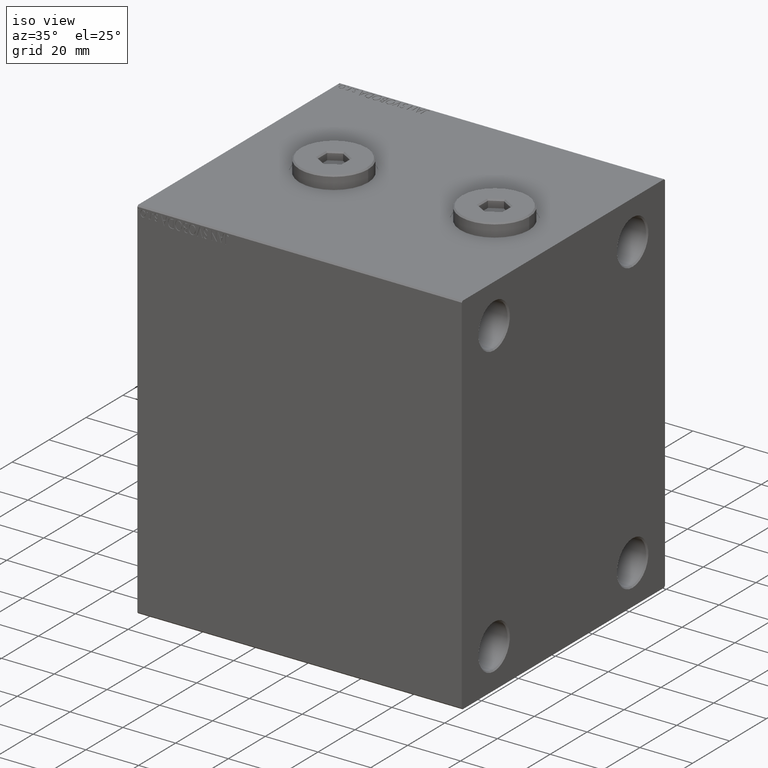
[diagram: clean part render]
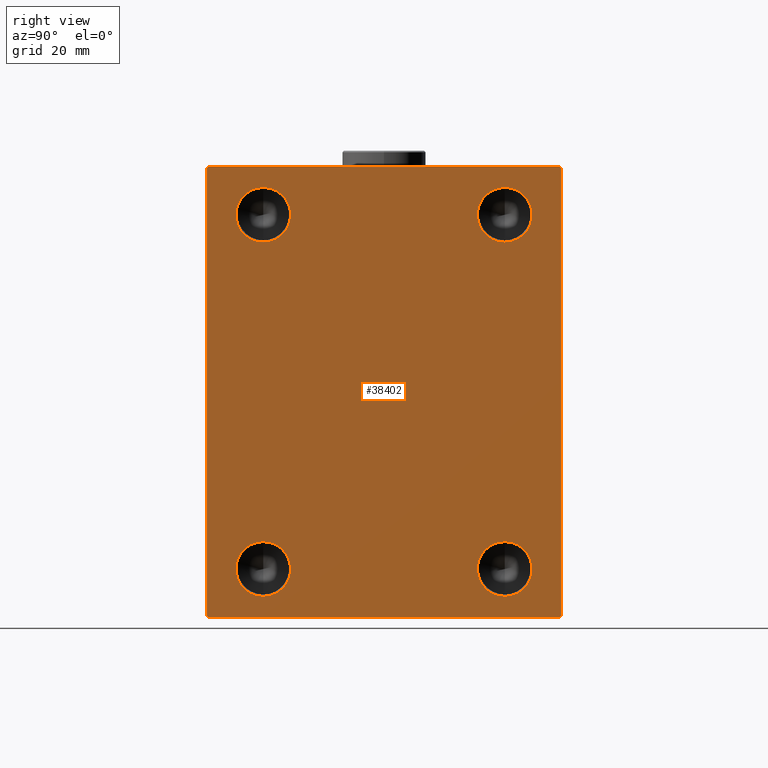
[diagram: tour spotlight — one face highlighted and labeled with its STEP entity id]
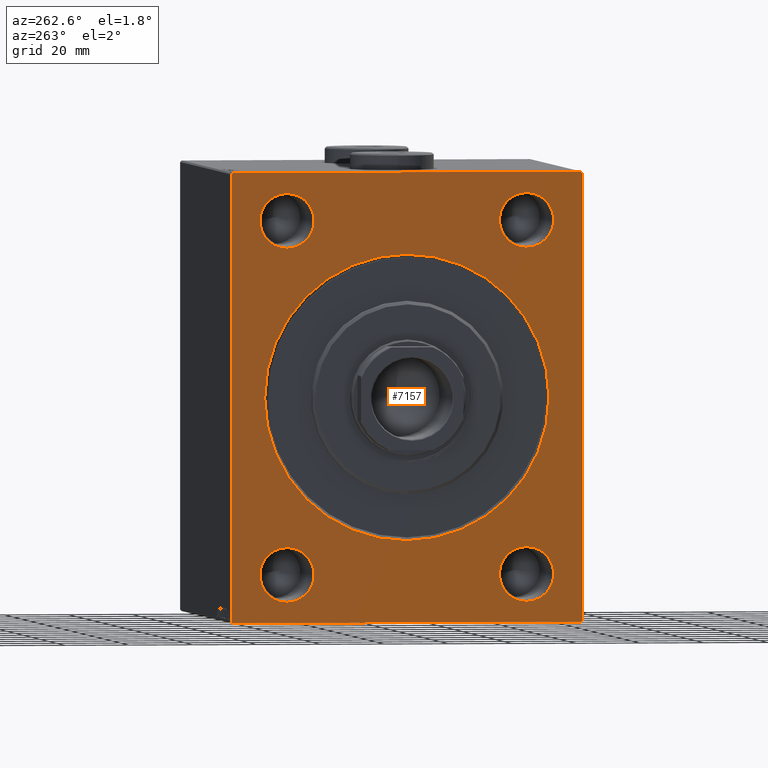
[diagram: tour spotlight — one face highlighted and labeled with its STEP entity id]
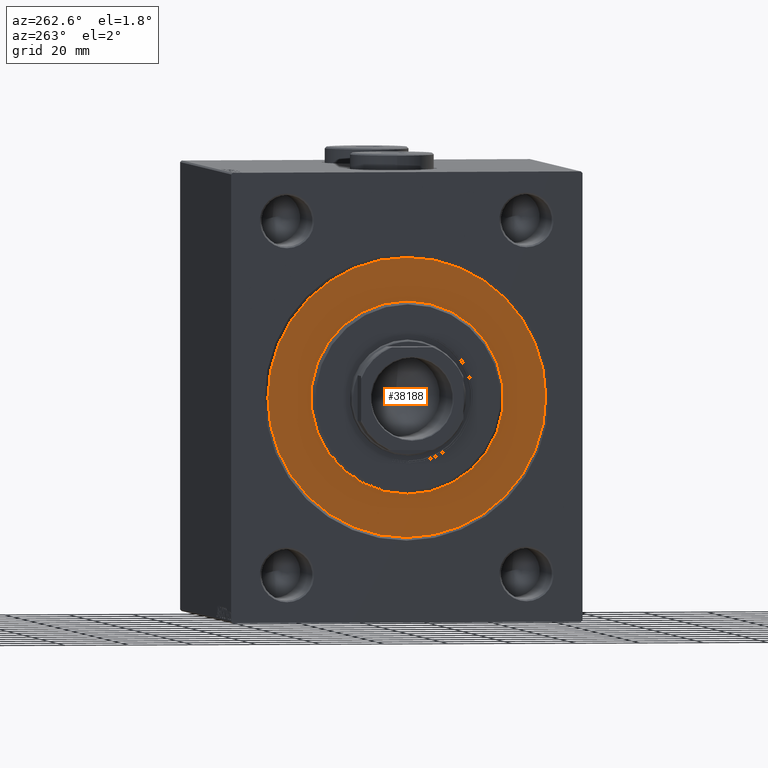
[diagram: tour spotlight — one face highlighted and labeled with its STEP entity id]
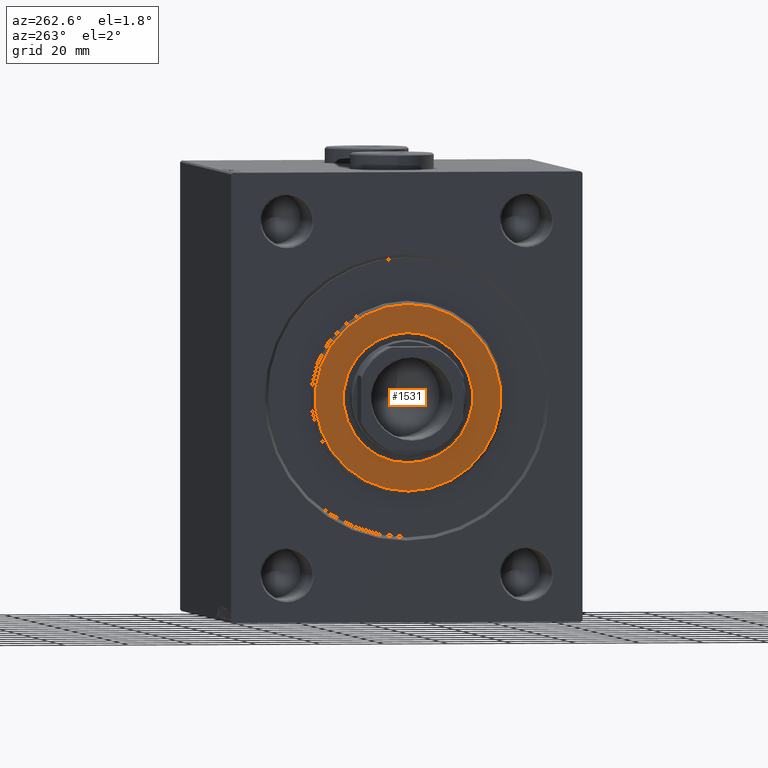
[diagram: tour spotlight — one face highlighted and labeled with its STEP entity id]
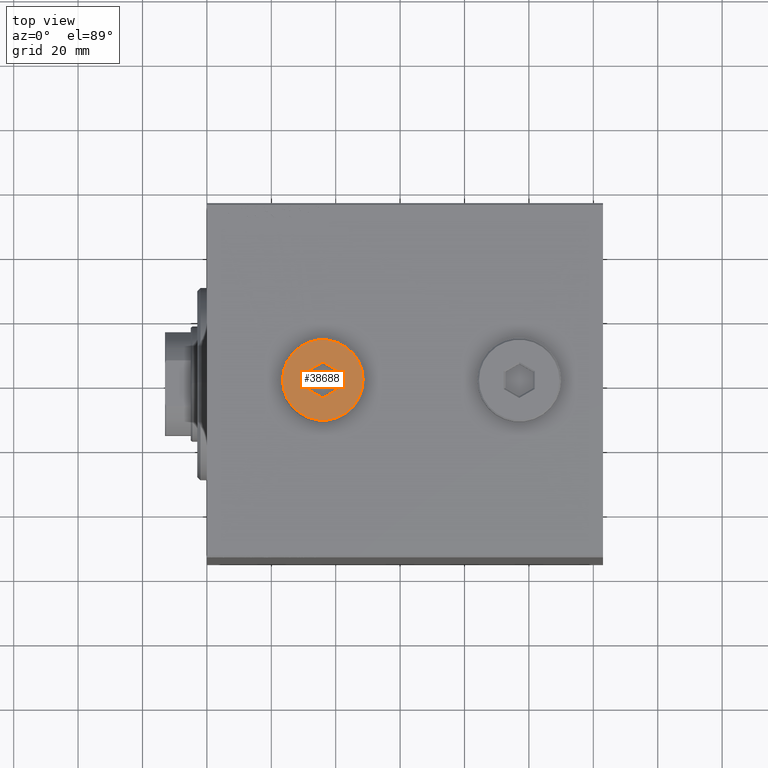
[diagram: tour spotlight — one face highlighted and labeled with its STEP entity id]
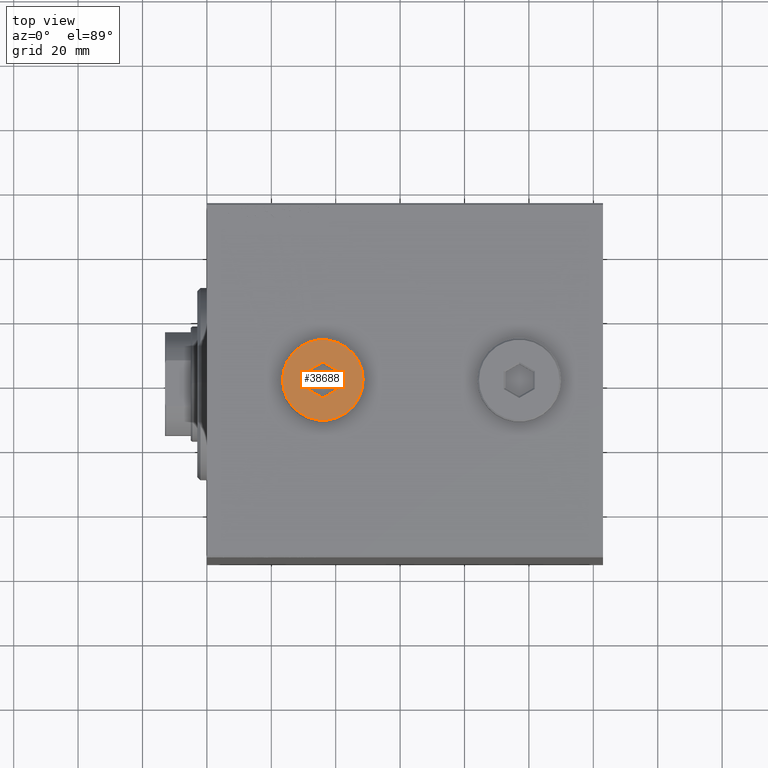
[diagram: tour spotlight — one face highlighted and labeled with its STEP entity id]
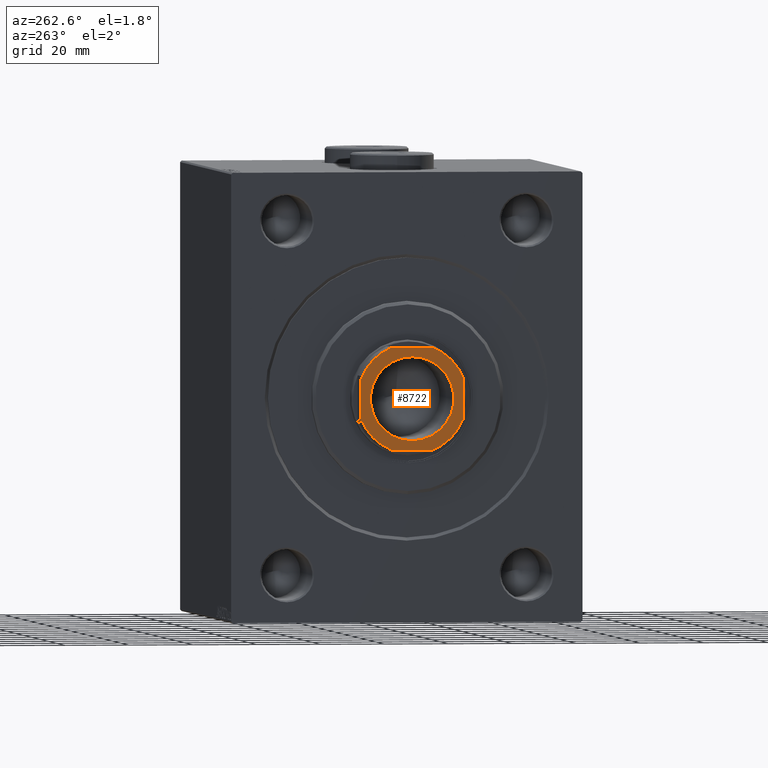
[diagram: tour spotlight — one face highlighted and labeled with its STEP entity id]
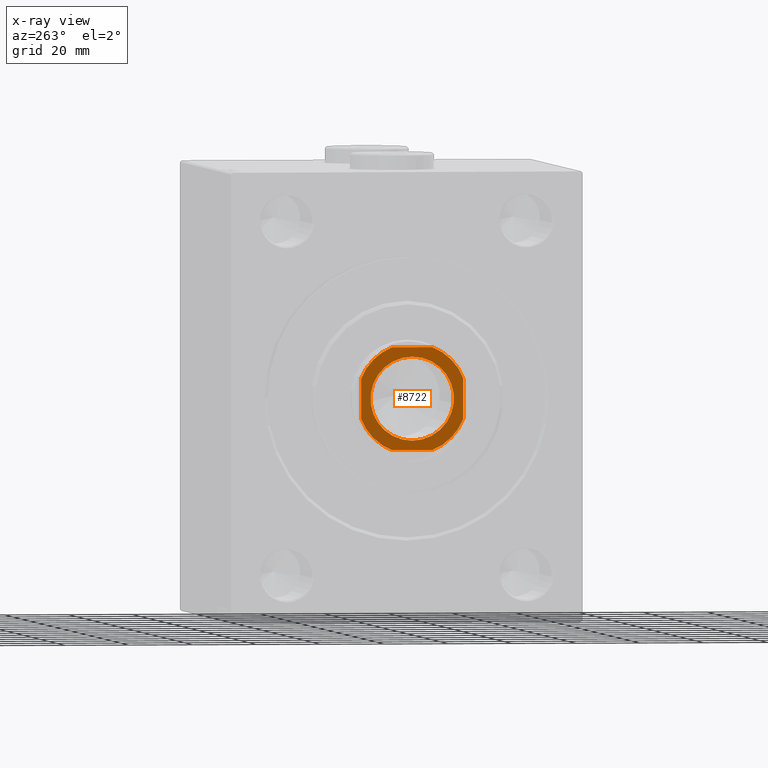
[diagram: x-ray of the same camera — body ghosted, this tour face saturated]
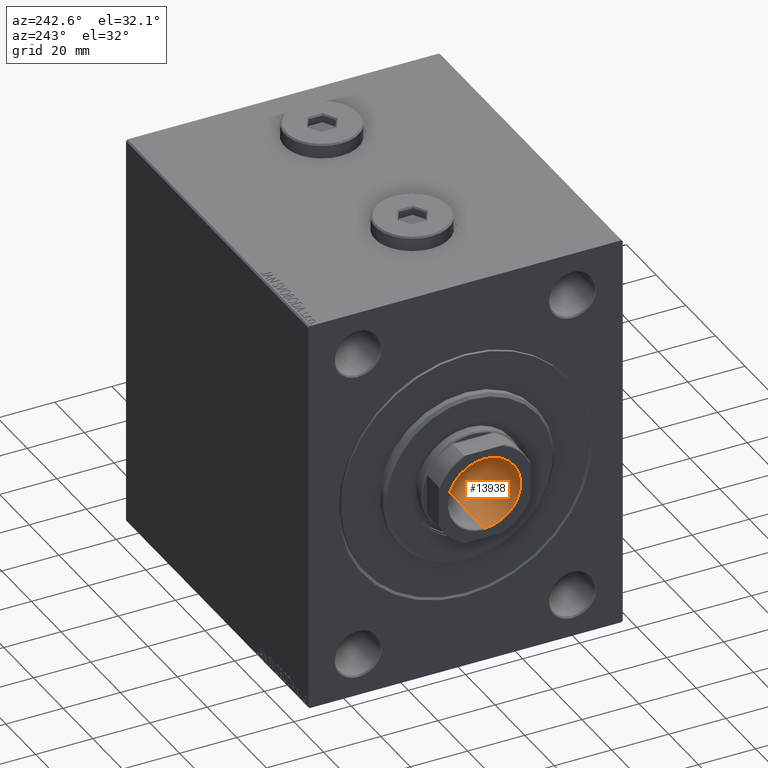
[diagram: tour spotlight — one face highlighted and labeled with its STEP entity id]
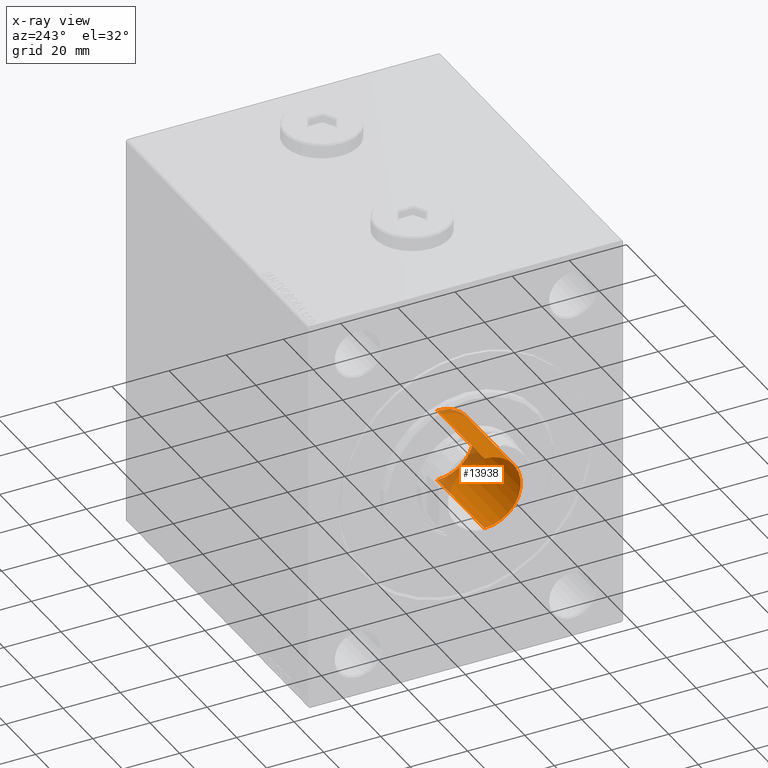
[diagram: x-ray of the same camera — body ghosted, this tour face saturated]
A machine part: a face-by-face anatomy tour. The part has 936 B-rep faces; the first image is the clean iso view, then the 8 largest visible faces are spotlighted one at a time (largest first), each with its STEP entity span.

Face 1 — right view, entity #38402. In plain terms, the highlighted planar face has unit normal (1, 0, 0).
Definition (entity closure, byte-faithful):
#406 = AXIS2_PLACEMENT_3D ( 'NONE', #40878, #44547, #23408 ) ;
#426 = ORIENTED_EDGE ( 'NONE', *, *, #31390, .F. ) ;
#864 = ORIENTED_EDGE ( 'NONE', *, *, #31849, .F. ) ;
#1293 = LINE ( 'NONE', #11435, #26756 ) ;
#1896 = ORIENTED_EDGE ( 'NONE', *, *, #43259, .F. ) ;
#1992 = CARTESIAN_POINT ( 'NONE',  ( 123.0000000000000000, -37.49999999999999289, 46.50000000000000000 ) ) ;
#2530 = CARTESIAN_POINT ( 'NONE',  ( 123.0000000000000000, 62.24999999999847233, 62.25000000000193268 ) ) ;
#3231 = AXIS2_PLACEMENT_3D ( 'NONE', #37370, #26083, #33701 ) ;
#3239 = CARTESIAN_POINT ( 'NONE',  ( 123.0000000000000000, -54.49999999999997158, -70.00000000000000000 ) ) ;
#4948 = CARTESIAN_POINT ( 'NONE',  ( 123.0000000000000000, -37.49999999999999289, -63.50000000000000000 ) ) ;
#5696 = CARTESIAN_POINT ( 'NONE',  ( 123.0000000000000000, -37.49999999999999289, -54.99999999999999289 ) ) ;
#6203 = AXIS2_PLACEMENT_3D ( 'NONE', #15989, #30234, #33232 ) ;
#6217 = VERTEX_POINT ( 'NONE', #43422 ) ;
#6436 = ORIENTED_EDGE ( 'NONE', *, *, #26140, .T. ) ;
#6461 = CIRCLE ( 'NONE', #38039, 8.500000000000007105 ) ;
#6880 = ORIENTED_EDGE ( 'NONE', *, *, #18773, .T. ) ;
#6921 = CIRCLE ( 'NONE', #3231, 8.500000000000007105 ) ;
#7168 = CARTESIAN_POINT ( 'NONE',  ( 123.0000000000000000, -37.49999999999999289, -54.99999999999999289 ) ) ;
#7246 = DIRECTION ( 'NONE',  ( 0.000000000000000000, 0.000000000000000000, -1.000000000000000000 ) ) ;
#7431 = DIRECTION ( 'NONE',  ( 0.000000000000000000, 0.000000000000000000, -1.000000000000000000 ) ) ;
#7452 = VERTEX_POINT ( 'NONE', #22598 ) ;
#8933 = DIRECTION ( 'NONE',  ( 1.000000000000000000, -0.000000000000000000, -0.000000000000000000 ) ) ;
#9142 = CIRCLE ( 'NONE', #6203, 8.500000000000007105 ) ;
#9549 = VECTOR ( 'NONE', #33984, 1000.000000000000000 ) ;
#9611 = DIRECTION ( 'NONE',  ( 0.000000000000000000, 0.000000000000000000, -1.000000000000000000 ) ) ;
#11435 = CARTESIAN_POINT ( 'NONE',  ( 123.0000000000000000, -55.00000000000000000, -70.00000000000000000 ) ) ;
#11488 = CIRCLE ( 'NONE', #15156, 8.500000000000007105 ) ;
#11671 = DIRECTION ( 'NONE',  ( 0.000000000000000000, 1.000000000000000000, 1.261617073437677752E-16 ) ) ;
#12147 = DIRECTION ( 'NONE',  ( 0.000000000000000000, 0.000000000000000000, -1.000000000000000000 ) ) ;
#12385 = DIRECTION ( 'NONE',  ( 1.000000000000000000, -0.000000000000000000, -0.000000000000000000 ) ) ;
#12696 = DIRECTION ( 'NONE',  ( 1.000000000000000000, -0.000000000000000000, -0.000000000000000000 ) ) ;
#12831 = FACE_BOUND ( 'NONE', #20756, .T. ) ;
#14108 = CARTESIAN_POINT ( 'NONE',  ( 123.0000000000000000, 54.99999999999999289, 70.00000000000001421 ) ) ;
#14496 = VECTOR ( 'NONE', #25939, 1000.000000000000000 ) ;
#15156 = AXIS2_PLACEMENT_3D ( 'NONE', #42142, #20769, #7431 ) ;
#15447 = VERTEX_POINT ( 'NONE', #33969 ) ;
#15911 = DIRECTION ( 'NONE',  ( 1.000000000000000000, -0.000000000000000000, -0.000000000000000000 ) ) ;
#15989 = CARTESIAN_POINT ( 'NONE',  ( 123.0000000000000000, 37.50000000000000000, 55.00000000000000711 ) ) ;
#16275 = FACE_BOUND ( 'NONE', #17833, .T. ) ;
#16570 = DIRECTION ( 'NONE',  ( -0.000000000000000000, -0.7071067811865672237, 0.7071067811865279218 ) ) ;
#16617 = VECTOR ( 'NONE', #17779, 1000.000000000000000 ) ;
#17125 = VERTEX_POINT ( 'NONE', #1992 ) ;
#17599 = AXIS2_PLACEMENT_3D ( 'NONE', #22809, #15911, #29931 ) ;
#17779 = DIRECTION ( 'NONE',  ( 0.000000000000000000, -1.000000000000000000, -1.261617073437677999E-16 ) ) ;
#17833 = EDGE_LOOP ( 'NONE', ( #19835, #426 ) ) ;
#18072 = VECTOR ( 'NONE', #25345, 1000.000000000000000 ) ;
#18121 = ORIENTED_EDGE ( 'NONE', *, *, #44064, .T. ) ;
#18207 = EDGE_CURVE ( 'NONE', #43932, #19683, #9142, .T. ) ;
#18219 = EDGE_CURVE ( 'NONE', #7452, #43514, #6921, .T. ) ;
#18773 = EDGE_CURVE ( 'NONE', #34435, #24538, #22294, .T. ) ;
#19683 = VERTEX_POINT ( 'NONE', #25350 ) ;
#19835 = ORIENTED_EDGE ( 'NONE', *, *, #31949, .F. ) ;
#19915 = EDGE_LOOP ( 'NONE', ( #864, #26325 ) ) ;
#20134 = CARTESIAN_POINT ( 'NONE',  ( 123.0000000000000000, 54.50000000000001421, -69.99999999999998579 ) ) ;
#20444 = ORIENTED_EDGE ( 'NONE', *, *, #38202, .F. ) ;
#20756 = EDGE_LOOP ( 'NONE', ( #20783, #1896 ) ) ;
#20769 = DIRECTION ( 'NONE',  ( 1.000000000000000000, -0.000000000000000000, -0.000000000000000000 ) ) ;
#20783 = ORIENTED_EDGE ( 'NONE', *, *, #18219, .F. ) ;
#20965 = VERTEX_POINT ( 'NONE', #3239 ) ;
#22294 = LINE ( 'NONE', #25739, #23869 ) ;
#22482 = AXIS2_PLACEMENT_3D ( 'NONE', #5696, #8933, #9611 ) ;
#22598 = CARTESIAN_POINT ( 'NONE',  ( 123.0000000000000000, 37.50000000000000000, -46.49999999999998579 ) ) ;
#22809 = CARTESIAN_POINT ( 'NONE',  ( 123.0000000000000000, -37.49999999999999289, 55.00000000000000711 ) ) ;
#22961 = LINE ( 'NONE', #43646, #14496 ) ;
#23036 = CARTESIAN_POINT ( 'NONE',  ( 123.0000000000000000, 37.50000000000000000, 55.00000000000000711 ) ) ;
#23110 = CARTESIAN_POINT ( 'NONE',  ( 123.0000000000000000, 37.50000000000000000, 46.50000000000000000 ) ) ;
#23408 = DIRECTION ( 'NONE',  ( 0.000000000000000000, 0.000000000000000000, -1.000000000000000000 ) ) ;
#23565 = CARTESIAN_POINT ( 'NONE',  ( 123.0000000000000000, -37.49999999999999289, 63.50000000000001421 ) ) ;
#23852 = PLANE ( 'NONE',  #406 ) ;
#23869 = VECTOR ( 'NONE', #28955, 999.9999999999998863 ) ;
#23971 = CARTESIAN_POINT ( 'NONE',  ( 123.0000000000000000, -55.00000000000000000, 70.00000000000000000 ) ) ;
#24538 = VERTEX_POINT ( 'NONE', #42832 ) ;
#24695 = EDGE_CURVE ( 'NONE', #24538, #15447, #37762, .T. ) ;
#25288 = CARTESIAN_POINT ( 'NONE',  ( 123.0000000000000000, -54.49999999999999289, 70.00000000000000000 ) ) ;
#25345 = DIRECTION ( 'NONE',  ( -0.000000000000000000, 0.7071067811865672237, -0.7071067811865279218 ) ) ;
#25350 = CARTESIAN_POINT ( 'NONE',  ( 123.0000000000000000, 37.50000000000000000, 63.50000000000001421 ) ) ;
#25739 = CARTESIAN_POINT ( 'NONE',  ( 123.0000000000000000, -62.24999999999961631, 62.25000000000048317 ) ) ;
#25939 = DIRECTION ( 'NONE',  ( -0.000000000000000000, 0.7071067811865230368, 0.7071067811865721087 ) ) ;
#26083 = DIRECTION ( 'NONE',  ( 1.000000000000000000, -0.000000000000000000, -0.000000000000000000 ) ) ;
#26114 = CIRCLE ( 'NONE', #32756, 8.500000000000007105 ) ;
#26140 = EDGE_CURVE ( 'NONE', #31256, #33720, #22961, .T. ) ;
#26325 = ORIENTED_EDGE ( 'NONE', *, *, #18207, .F. ) ;
#26756 = VECTOR ( 'NONE', #11671, 1000.000000000000000 ) ;
#26842 = FACE_OUTER_BOUND ( 'NONE', #32378, .T. ) ;
#27873 = CIRCLE ( 'NONE', #17599, 8.500000000000007105 ) ;
#28227 = CARTESIAN_POINT ( 'NONE',  ( 123.0000000000000000, 55.00000000000000711, -69.49999999999997158 ) ) ;
#28319 = CIRCLE ( 'NONE', #22482, 8.500000000000007105 ) ;
#28589 = CIRCLE ( 'NONE', #39618, 8.500000000000007105 ) ;
#28955 = DIRECTION ( 'NONE',  ( 0.000000000000000000, -0.7071067811865525687, -0.7071067811865425767 ) ) ;
#29931 = DIRECTION ( 'NONE',  ( 0.000000000000000000, 0.000000000000000000, -1.000000000000000000 ) ) ;
#30234 = DIRECTION ( 'NONE',  ( 1.000000000000000000, -0.000000000000000000, -0.000000000000000000 ) ) ;
#30295 = FACE_BOUND ( 'NONE', #34444, .T. ) ;
#30719 = CARTESIAN_POINT ( 'NONE',  ( 123.0000000000000000, -37.49999999999999289, 55.00000000000000711 ) ) ;
#30941 = DIRECTION ( 'NONE',  ( 1.000000000000000000, -0.000000000000000000, -0.000000000000000000 ) ) ;
#31256 = VERTEX_POINT ( 'NONE', #20134 ) ;
#31390 = EDGE_CURVE ( 'NONE', #17125, #44035, #6461, .T. ) ;
#31697 = CARTESIAN_POINT ( 'NONE',  ( 123.0000000000000000, 37.50000000000000000, -63.50000000000000000 ) ) ;
#31849 = EDGE_CURVE ( 'NONE', #19683, #43932, #28589, .T. ) ;
#31949 = EDGE_CURVE ( 'NONE', #44035, #17125, #27873, .T. ) ;
#32073 = EDGE_CURVE ( 'NONE', #33720, #6217, #36977, .T. ) ;
#32378 = EDGE_LOOP ( 'NONE', ( #18121, #6880, #36291, #44661, #35171, #6436, #34783, #37327 ) ) ;
#32616 = VERTEX_POINT ( 'NONE', #42238 ) ;
#32756 = AXIS2_PLACEMENT_3D ( 'NONE', #7168, #12385, #12147 ) ;
#33232 = DIRECTION ( 'NONE',  ( 0.000000000000000000, 0.000000000000000000, -1.000000000000000000 ) ) ;
#33340 = LINE ( 'NONE', #42812, #18072 ) ;
#33701 = DIRECTION ( 'NONE',  ( 0.000000000000000000, 0.000000000000000000, -1.000000000000000000 ) ) ;
#33720 = VERTEX_POINT ( 'NONE', #28227 ) ;
#33800 = EDGE_CURVE ( 'NONE', #20965, #31256, #1293, .T. ) ;
#33969 = CARTESIAN_POINT ( 'NONE',  ( 123.0000000000000000, -55.00000000000000000, -69.50000000000000000 ) ) ;
#33984 = DIRECTION ( 'NONE',  ( 0.000000000000000000, -9.912705577010325549E-17, 1.000000000000000000 ) ) ;
#34307 = VECTOR ( 'NONE', #45115, 1000.000000000000000 ) ;
#34435 = VERTEX_POINT ( 'NONE', #25288 ) ;
#34444 = EDGE_LOOP ( 'NONE', ( #20444, #41936 ) ) ;
#34762 = VERTEX_POINT ( 'NONE', #40821 ) ;
#34783 = ORIENTED_EDGE ( 'NONE', *, *, #32073, .T. ) ;
#34970 = VECTOR ( 'NONE', #16570, 1000.000000000000000 ) ;
#35048 = LINE ( 'NONE', #14108, #16617 ) ;
#35171 = ORIENTED_EDGE ( 'NONE', *, *, #33800, .T. ) ;
#36291 = ORIENTED_EDGE ( 'NONE', *, *, #24695, .T. ) ;
#36977 = LINE ( 'NONE', #40197, #9549 ) ;
#37291 = DIRECTION ( 'NONE',  ( 0.000000000000000000, 0.000000000000000000, -1.000000000000000000 ) ) ;
#37327 = ORIENTED_EDGE ( 'NONE', *, *, #39162, .T. ) ;
#37370 = CARTESIAN_POINT ( 'NONE',  ( 123.0000000000000000, 37.50000000000000000, -54.99999999999999289 ) ) ;
#37762 = LINE ( 'NONE', #23971, #34307 ) ;
#38039 = AXIS2_PLACEMENT_3D ( 'NONE', #30719, #30941, #7246 ) ;
#38202 = EDGE_CURVE ( 'NONE', #32616, #38547, #26114, .T. ) ;
#38328 = EDGE_CURVE ( 'NONE', #38547, #32616, #28319, .T. ) ;
#38402 = ADVANCED_FACE ( 'NONE', ( #41319, #16275, #30295, #12831, #26842 ), #23852, .T. ) ;
#38547 = VERTEX_POINT ( 'NONE', #4948 ) ;
#39162 = EDGE_CURVE ( 'NONE', #6217, #34762, #45526, .T. ) ;
#39618 = AXIS2_PLACEMENT_3D ( 'NONE', #23036, #12696, #37291 ) ;
#40197 = CARTESIAN_POINT ( 'NONE',  ( 123.0000000000000000, 55.00000000000000711, -69.99999999999998579 ) ) ;
#40821 = CARTESIAN_POINT ( 'NONE',  ( 123.0000000000000000, 54.49999999999996447, 70.00000000000001421 ) ) ;
#40878 = CARTESIAN_POINT ( 'NONE',  ( 123.0000000000000000, 0.000000000000000000, 0.000000000000000000 ) ) ;
#41319 = FACE_BOUND ( 'NONE', #19915, .T. ) ;
#41936 = ORIENTED_EDGE ( 'NONE', *, *, #38328, .F. ) ;
#42142 = CARTESIAN_POINT ( 'NONE',  ( 123.0000000000000000, 37.50000000000000000, -54.99999999999999289 ) ) ;
#42238 = CARTESIAN_POINT ( 'NONE',  ( 123.0000000000000000, -37.49999999999999289, -46.49999999999998579 ) ) ;
#42812 = CARTESIAN_POINT ( 'NONE',  ( 123.0000000000000000, -62.24999999999847233, -62.25000000000193268 ) ) ;
#42832 = CARTESIAN_POINT ( 'NONE',  ( 123.0000000000000000, -55.00000000000000000, 69.50000000000000000 ) ) ;
#43259 = EDGE_CURVE ( 'NONE', #43514, #7452, #11488, .T. ) ;
#43372 = EDGE_CURVE ( 'NONE', #15447, #20965, #33340, .T. ) ;
#43422 = CARTESIAN_POINT ( 'NONE',  ( 123.0000000000000000, 54.99999999999999289, 69.50000000000001421 ) ) ;
#43514 = VERTEX_POINT ( 'NONE', #31697 ) ;
#43646 = CARTESIAN_POINT ( 'NONE',  ( 123.0000000000000000, 62.25000000000189715, -62.24999999999756994 ) ) ;
#43932 = VERTEX_POINT ( 'NONE', #23110 ) ;
#44035 = VERTEX_POINT ( 'NONE', #23565 ) ;
#44064 = EDGE_CURVE ( 'NONE', #34762, #34435, #35048, .T. ) ;
#44547 = DIRECTION ( 'NONE',  ( 1.000000000000000000, 0.000000000000000000, 0.000000000000000000 ) ) ;
#44661 = ORIENTED_EDGE ( 'NONE', *, *, #43372, .T. ) ;
#45115 = DIRECTION ( 'NONE',  ( 0.000000000000000000, 0.000000000000000000, -1.000000000000000000 ) ) ;
#45526 = LINE ( 'NONE', #2530, #34970 ) ;

Face 2 — auxiliary view, entity #7157. In plain terms, the highlighted planar face has unit normal (1, 0, 0).
Definition (entity closure, byte-faithful):
#451 = CARTESIAN_POINT ( 'NONE',  ( 0.000000000000000000, -37.49999999999999289, 63.50000000000001421 ) ) ;
#1264 = CARTESIAN_POINT ( 'NONE',  ( 0.000000000000000000, 54.49999999999996447, 70.00000000000001421 ) ) ;
#1327 = VERTEX_POINT ( 'NONE', #19981 ) ;
#1422 = EDGE_CURVE ( 'NONE', #8939, #22369, #36266, .T. ) ;
#1511 = CARTESIAN_POINT ( 'NONE',  ( 0.000000000000000000, 0.000000000000000000, 0.000000000000000000 ) ) ;
#1573 = CARTESIAN_POINT ( 'NONE',  ( 0.000000000000000000, 37.50000000000000000, -46.49999999999998579 ) ) ;
#2012 = EDGE_CURVE ( 'NONE', #41709, #16107, #31587, .T. ) ;
#2103 = FACE_BOUND ( 'NONE', #33023, .T. ) ;
#2753 = ORIENTED_EDGE ( 'NONE', *, *, #9799, .F. ) ;
#2855 = VERTEX_POINT ( 'NONE', #35966 ) ;
#3005 = CARTESIAN_POINT ( 'NONE',  ( 0.000000000000000000, -55.00000000000000000, 70.00000000000000000 ) ) ;
#3572 = CARTESIAN_POINT ( 'NONE',  ( 0.000000000000000000, 0.000000000000000000, 44.49999999999998579 ) ) ;
#3801 = CARTESIAN_POINT ( 'NONE',  ( 0.000000000000000000, 37.50000000000000000, 46.50000000000000000 ) ) ;
#3832 = CARTESIAN_POINT ( 'NONE',  ( 0.000000000000000000, -55.00000000000000000, 69.50000000000000000 ) ) ;
#3864 = CARTESIAN_POINT ( 'NONE',  ( 0.000000000000000000, -55.00000000000000000, -70.00000000000000000 ) ) ;
#4270 = CARTESIAN_POINT ( 'NONE',  ( 0.000000000000000000, 55.00000000000000711, -69.99999999999998579 ) ) ;
#4428 = EDGE_LOOP ( 'NONE', ( #11915, #13850 ) ) ;
#5225 = EDGE_LOOP ( 'NONE', ( #8124, #6651, #11022, #15853, #2753, #36571, #34080, #32842 ) ) ;
#5354 = LINE ( 'NONE', #36635, #18836 ) ;
#5556 = FACE_BOUND ( 'NONE', #16831, .T. ) ;
#5703 = EDGE_CURVE ( 'NONE', #16343, #39171, #12103, .T. ) ;
#5724 = DIRECTION ( 'NONE',  ( 1.000000000000000000, 0.000000000000000000, 0.000000000000000000 ) ) ;
#6109 = DIRECTION ( 'NONE',  ( 0.000000000000000000, 0.000000000000000000, -1.000000000000000000 ) ) ;
#6651 = ORIENTED_EDGE ( 'NONE', *, *, #5703, .T. ) ;
#7157 = ADVANCED_FACE ( 'NONE', ( #5556, #15449, #33622, #12697, #2103, #16143 ), #30164, .F. ) ;
#7165 = CARTESIAN_POINT ( 'NONE',  ( 0.000000000000000000, 5.449678256205719615E-15, -44.49999999999998579 ) ) ;
#7249 = CIRCLE ( 'NONE', #32958, 8.500000000000007105 ) ;
#7381 = ORIENTED_EDGE ( 'NONE', *, *, #13485, .T. ) ;
#7453 = DIRECTION ( 'NONE',  ( 1.000000000000000000, 0.000000000000000000, 0.000000000000000000 ) ) ;
#7574 = DIRECTION ( 'NONE',  ( 1.000000000000000000, 0.000000000000000000, 0.000000000000000000 ) ) ;
#8124 = ORIENTED_EDGE ( 'NONE', *, *, #34312, .F. ) ;
#8156 = CARTESIAN_POINT ( 'NONE',  ( 0.000000000000000000, 37.50000000000000000, 55.00000000000000711 ) ) ;
#8178 = VECTOR ( 'NONE', #19909, 999.9999999999998863 ) ;
#8182 = VERTEX_POINT ( 'NONE', #7165 ) ;
#8492 = DIRECTION ( 'NONE',  ( 1.000000000000000000, 0.000000000000000000, 0.000000000000000000 ) ) ;
#8733 = CARTESIAN_POINT ( 'NONE',  ( 0.000000000000000000, -37.49999999999999289, 55.00000000000000711 ) ) ;
#8939 = VERTEX_POINT ( 'NONE', #1264 ) ;
#9054 = EDGE_LOOP ( 'NONE', ( #27644, #34559 ) ) ;
#9251 = DIRECTION ( 'NONE',  ( 0.000000000000000000, 0.000000000000000000, -1.000000000000000000 ) ) ;
#9275 = CIRCLE ( 'NONE', #23933, 8.500000000000007105 ) ;
#9799 = EDGE_CURVE ( 'NONE', #2855, #22369, #11184, .T. ) ;
#9856 = CIRCLE ( 'NONE', #19410, 44.49999999999998579 ) ;
#10342 = VERTEX_POINT ( 'NONE', #31942 ) ;
#10614 = DIRECTION ( 'NONE',  ( 0.000000000000000000, -0.7071067811865230368, -0.7071067811865721087 ) ) ;
#10701 = VECTOR ( 'NONE', #10614, 1000.000000000000000 ) ;
#10990 = CARTESIAN_POINT ( 'NONE',  ( 0.000000000000000000, 37.50000000000000000, 63.50000000000001421 ) ) ;
#11022 = ORIENTED_EDGE ( 'NONE', *, *, #44525, .F. ) ;
#11184 = LINE ( 'NONE', #4270, #32499 ) ;
#11467 = DIRECTION ( 'NONE',  ( 0.000000000000000000, 0.000000000000000000, -1.000000000000000000 ) ) ;
#11575 = VERTEX_POINT ( 'NONE', #21985 ) ;
#11915 = ORIENTED_EDGE ( 'NONE', *, *, #21847, .T. ) ;
#12103 = LINE ( 'NONE', #43826, #8178 ) ;
#12697 = FACE_BOUND ( 'NONE', #28705, .T. ) ;
#13485 = EDGE_CURVE ( 'NONE', #8182, #15585, #9856, .T. ) ;
#13752 = CIRCLE ( 'NONE', #24030, 8.500000000000007105 ) ;
#13850 = ORIENTED_EDGE ( 'NONE', *, *, #29556, .T. ) ;
#14281 = VERTEX_POINT ( 'NONE', #10990 ) ;
#14490 = LINE ( 'NONE', #3005, #21627 ) ;
#14491 = ORIENTED_EDGE ( 'NONE', *, *, #42220, .T. ) ;
#14924 = EDGE_CURVE ( 'NONE', #14281, #28848, #23840, .T. ) ;
#15125 = CIRCLE ( 'NONE', #38627, 8.500000000000007105 ) ;
#15277 = DIRECTION ( 'NONE',  ( 1.000000000000000000, 0.000000000000000000, 0.000000000000000000 ) ) ;
#15449 = FACE_BOUND ( 'NONE', #9054, .T. ) ;
#15585 = VERTEX_POINT ( 'NONE', #3572 ) ;
#15591 = CARTESIAN_POINT ( 'NONE',  ( 0.000000000000000000, 37.50000000000000000, 55.00000000000000711 ) ) ;
#15637 = ORIENTED_EDGE ( 'NONE', *, *, #39221, .T. ) ;
#15853 = ORIENTED_EDGE ( 'NONE', *, *, #1422, .T. ) ;
#16107 = VERTEX_POINT ( 'NONE', #1573 ) ;
#16143 = FACE_OUTER_BOUND ( 'NONE', #5225, .T. ) ;
#16343 = VERTEX_POINT ( 'NONE', #3832 ) ;
#16619 = CIRCLE ( 'NONE', #42302, 8.500000000000007105 ) ;
#16831 = EDGE_LOOP ( 'NONE', ( #14491, #7381 ) ) ;
#17359 = CARTESIAN_POINT ( 'NONE',  ( 0.000000000000000000, 54.50000000000001421, -69.99999999999998579 ) ) ;
#18561 = CARTESIAN_POINT ( 'NONE',  ( 0.000000000000000000, 54.49999999999996447, 70.00000000000001421 ) ) ;
#18774 = DIRECTION ( 'NONE',  ( 0.000000000000000000, 0.000000000000000000, -1.000000000000000000 ) ) ;
#18836 = VECTOR ( 'NONE', #22370, 1000.000000000000000 ) ;
#19310 = ORIENTED_EDGE ( 'NONE', *, *, #14924, .T. ) ;
#19410 = AXIS2_PLACEMENT_3D ( 'NONE', #1511, #26357, #18774 ) ;
#19697 = AXIS2_PLACEMENT_3D ( 'NONE', #26115, #41066, #6109 ) ;
#19780 = LINE ( 'NONE', #27121, #43815 ) ;
#19909 = DIRECTION ( 'NONE',  ( -0.000000000000000000, 0.7071067811865525687, 0.7071067811865425767 ) ) ;
#19981 = CARTESIAN_POINT ( 'NONE',  ( 0.000000000000000000, -37.49999999999999289, -46.49999999999998579 ) ) ;
#20737 = VERTEX_POINT ( 'NONE', #21235 ) ;
#21023 = CARTESIAN_POINT ( 'NONE',  ( 0.000000000000000000, -37.49999999999999289, -54.99999999999999289 ) ) ;
#21235 = CARTESIAN_POINT ( 'NONE',  ( 0.000000000000000000, -37.49999999999999289, 46.50000000000000000 ) ) ;
#21367 = CARTESIAN_POINT ( 'NONE',  ( 0.000000000000000000, 37.50000000000000000, -54.99999999999999289 ) ) ;
#21627 = VECTOR ( 'NONE', #27620, 1000.000000000000000 ) ;
#21847 = EDGE_CURVE ( 'NONE', #34329, #20737, #9275, .T. ) ;
#21985 = CARTESIAN_POINT ( 'NONE',  ( 0.000000000000000000, -54.49999999999997158, -70.00000000000000000 ) ) ;
#22174 = DIRECTION ( 'NONE',  ( 0.000000000000000000, 0.000000000000000000, -1.000000000000000000 ) ) ;
#22369 = VERTEX_POINT ( 'NONE', #44520 ) ;
#22370 = DIRECTION ( 'NONE',  ( -0.000000000000000000, -0.7071067811865672237, 0.7071067811865279218 ) ) ;
#22512 = DIRECTION ( 'NONE',  ( 0.000000000000000000, 0.000000000000000000, -1.000000000000000000 ) ) ;
#22929 = DIRECTION ( 'NONE',  ( -0.000000000000000000, 0.7071067811865672237, -0.7071067811865279218 ) ) ;
#23840 = CIRCLE ( 'NONE', #39870, 8.500000000000007105 ) ;
#23933 = AXIS2_PLACEMENT_3D ( 'NONE', #8733, #5724, #37454 ) ;
#24030 = AXIS2_PLACEMENT_3D ( 'NONE', #15591, #42949, #11467 ) ;
#24036 = AXIS2_PLACEMENT_3D ( 'NONE', #33461, #44025, #34813 ) ;
#24793 = EDGE_CURVE ( 'NONE', #28848, #14281, #13752, .T. ) ;
#25429 = DIRECTION ( 'NONE',  ( 0.000000000000000000, -9.912705577010325549E-17, 1.000000000000000000 ) ) ;
#26115 = CARTESIAN_POINT ( 'NONE',  ( 0.000000000000000000, -37.49999999999999289, -54.99999999999999289 ) ) ;
#26282 = VERTEX_POINT ( 'NONE', #17359 ) ;
#26357 = DIRECTION ( 'NONE',  ( 1.000000000000000000, 0.000000000000000000, 0.000000000000000000 ) ) ;
#27121 = CARTESIAN_POINT ( 'NONE',  ( 0.000000000000000000, 54.99999999999999289, 70.00000000000001421 ) ) ;
#27620 = DIRECTION ( 'NONE',  ( 0.000000000000000000, 0.000000000000000000, -1.000000000000000000 ) ) ;
#27625 = ORIENTED_EDGE ( 'NONE', *, *, #2012, .T. ) ;
#27644 = ORIENTED_EDGE ( 'NONE', *, *, #31197, .T. ) ;
#27705 = CIRCLE ( 'NONE', #24036, 44.49999999999998579 ) ;
#28373 = DIRECTION ( 'NONE',  ( 0.000000000000000000, 0.000000000000000000, -1.000000000000000000 ) ) ;
#28481 = DIRECTION ( 'NONE',  ( 0.000000000000000000, 1.000000000000000000, 1.261617073437677752E-16 ) ) ;
#28705 = EDGE_LOOP ( 'NONE', ( #19310, #34545 ) ) ;
#28848 = VERTEX_POINT ( 'NONE', #3801 ) ;
#29556 = EDGE_CURVE ( 'NONE', #20737, #34329, #7249, .T. ) ;
#30025 = CARTESIAN_POINT ( 'NONE',  ( 0.000000000000000000, -37.49999999999999289, 55.00000000000000711 ) ) ;
#30164 = PLANE ( 'NONE',  #35391 ) ;
#31197 = EDGE_CURVE ( 'NONE', #1327, #10342, #42418, .T. ) ;
#31587 = CIRCLE ( 'NONE', #42564, 8.500000000000007105 ) ;
#31942 = CARTESIAN_POINT ( 'NONE',  ( 0.000000000000000000, -37.49999999999999289, -63.50000000000000000 ) ) ;
#31944 = DIRECTION ( 'NONE',  ( 0.000000000000000000, 0.000000000000000000, -1.000000000000000000 ) ) ;
#32499 = VECTOR ( 'NONE', #25429, 1000.000000000000000 ) ;
#32842 = ORIENTED_EDGE ( 'NONE', *, *, #44895, .T. ) ;
#32958 = AXIS2_PLACEMENT_3D ( 'NONE', #30025, #44046, #40601 ) ;
#33023 = EDGE_LOOP ( 'NONE', ( #15637, #27625 ) ) ;
#33402 = VECTOR ( 'NONE', #28481, 1000.000000000000000 ) ;
#33461 = CARTESIAN_POINT ( 'NONE',  ( 0.000000000000000000, 0.000000000000000000, 0.000000000000000000 ) ) ;
#33622 = FACE_BOUND ( 'NONE', #4428, .T. ) ;
#33890 = VECTOR ( 'NONE', #22929, 1000.000000000000000 ) ;
#34080 = ORIENTED_EDGE ( 'NONE', *, *, #35605, .F. ) ;
#34312 = EDGE_CURVE ( 'NONE', #16343, #44369, #14490, .T. ) ;
#34329 = VERTEX_POINT ( 'NONE', #451 ) ;
#34545 = ORIENTED_EDGE ( 'NONE', *, *, #24793, .T. ) ;
#34559 = ORIENTED_EDGE ( 'NONE', *, *, #38715, .T. ) ;
#34813 = DIRECTION ( 'NONE',  ( 0.000000000000000000, 0.000000000000000000, -1.000000000000000000 ) ) ;
#35386 = LINE ( 'NONE', #3864, #33402 ) ;
#35391 = AXIS2_PLACEMENT_3D ( 'NONE', #44184, #40740, #9251 ) ;
#35429 = CARTESIAN_POINT ( 'NONE',  ( 0.000000000000000000, -55.00000000000000000, -69.50000000000000000 ) ) ;
#35605 = EDGE_CURVE ( 'NONE', #11575, #26282, #35386, .T. ) ;
#35966 = CARTESIAN_POINT ( 'NONE',  ( 0.000000000000000000, 55.00000000000000711, -69.49999999999997158 ) ) ;
#36266 = LINE ( 'NONE', #18561, #33890 ) ;
#36571 = ORIENTED_EDGE ( 'NONE', *, *, #38121, .T. ) ;
#36635 = CARTESIAN_POINT ( 'NONE',  ( 0.000000000000000000, -54.49999999999997158, -70.00000000000000000 ) ) ;
#37454 = DIRECTION ( 'NONE',  ( 0.000000000000000000, 0.000000000000000000, -1.000000000000000000 ) ) ;
#37760 = LINE ( 'NONE', #38209, #10701 ) ;
#38121 = EDGE_CURVE ( 'NONE', #2855, #26282, #37760, .T. ) ;
#38209 = CARTESIAN_POINT ( 'NONE',  ( 0.000000000000000000, 55.00000000000000711, -69.49999999999997158 ) ) ;
#38627 = AXIS2_PLACEMENT_3D ( 'NONE', #21367, #7574, #31944 ) ;
#38715 = EDGE_CURVE ( 'NONE', #10342, #1327, #16619, .T. ) ;
#39171 = VERTEX_POINT ( 'NONE', #42513 ) ;
#39221 = EDGE_CURVE ( 'NONE', #16107, #41709, #15125, .T. ) ;
#39870 = AXIS2_PLACEMENT_3D ( 'NONE', #8156, #15277, #22174 ) ;
#39984 = CARTESIAN_POINT ( 'NONE',  ( 0.000000000000000000, 37.50000000000000000, -54.99999999999999289 ) ) ;
#40601 = DIRECTION ( 'NONE',  ( 0.000000000000000000, 0.000000000000000000, -1.000000000000000000 ) ) ;
#40740 = DIRECTION ( 'NONE',  ( 1.000000000000000000, 0.000000000000000000, 0.000000000000000000 ) ) ;
#41066 = DIRECTION ( 'NONE',  ( 1.000000000000000000, 0.000000000000000000, 0.000000000000000000 ) ) ;
#41372 = DIRECTION ( 'NONE',  ( 0.000000000000000000, -1.000000000000000000, -1.261617073437677999E-16 ) ) ;
#41709 = VERTEX_POINT ( 'NONE', #43439 ) ;
#42220 = EDGE_CURVE ( 'NONE', #15585, #8182, #27705, .T. ) ;
#42302 = AXIS2_PLACEMENT_3D ( 'NONE', #21023, #7453, #28373 ) ;
#42418 = CIRCLE ( 'NONE', #19697, 8.500000000000007105 ) ;
#42513 = CARTESIAN_POINT ( 'NONE',  ( 0.000000000000000000, -54.49999999999999289, 70.00000000000000000 ) ) ;
#42564 = AXIS2_PLACEMENT_3D ( 'NONE', #39984, #8492, #22512 ) ;
#42949 = DIRECTION ( 'NONE',  ( 1.000000000000000000, 0.000000000000000000, 0.000000000000000000 ) ) ;
#43439 = CARTESIAN_POINT ( 'NONE',  ( 0.000000000000000000, 37.50000000000000000, -63.50000000000000000 ) ) ;
#43815 = VECTOR ( 'NONE', #41372, 1000.000000000000000 ) ;
#43826 = CARTESIAN_POINT ( 'NONE',  ( 0.000000000000000000, -55.00000000000000000, 69.50000000000000000 ) ) ;
#44025 = DIRECTION ( 'NONE',  ( 1.000000000000000000, 0.000000000000000000, 0.000000000000000000 ) ) ;
#44046 = DIRECTION ( 'NONE',  ( 1.000000000000000000, 0.000000000000000000, 0.000000000000000000 ) ) ;
#44184 = CARTESIAN_POINT ( 'NONE',  ( 0.000000000000000000, 0.000000000000000000, 0.000000000000000000 ) ) ;
#44369 = VERTEX_POINT ( 'NONE', #35429 ) ;
#44520 = CARTESIAN_POINT ( 'NONE',  ( 0.000000000000000000, 54.99999999999999289, 69.50000000000001421 ) ) ;
#44525 = EDGE_CURVE ( 'NONE', #8939, #39171, #19780, .T. ) ;
#44895 = EDGE_CURVE ( 'NONE', #11575, #44369, #5354, .T. ) ;

Face 3 — auxiliary view, entity #38188. In plain terms, the highlighted planar face has unit normal (1, -0, -0).
Definition (entity closure, byte-faithful):
#925 = CIRCLE ( 'NONE', #26655, 43.50000000000000000 ) ;
#2512 = DIRECTION ( 'NONE',  ( 0.000000000000000000, 0.000000000000000000, 1.000000000000000000 ) ) ;
#2778 = AXIS2_PLACEMENT_3D ( 'NONE', #8760, #34031, #2512 ) ;
#3023 = PLANE ( 'NONE',  #13659 ) ;
#4556 = VERTEX_POINT ( 'NONE', #8271 ) ;
#7169 = ORIENTED_EDGE ( 'NONE', *, *, #18246, .F. ) ;
#8271 = CARTESIAN_POINT ( 'NONE',  ( 0.000000000000000000, 3.673940397442059178E-15, -30.00000000000000000 ) ) ;
#8289 = VERTEX_POINT ( 'NONE', #32438 ) ;
#8760 = CARTESIAN_POINT ( 'NONE',  ( 0.000000000000000000, 0.000000000000000000, 0.000000000000000000 ) ) ;
#9329 = CARTESIAN_POINT ( 'NONE',  ( 0.000000000000000000, 0.000000000000000000, 0.000000000000000000 ) ) ;
#11231 = EDGE_LOOP ( 'NONE', ( #7169, #41477 ) ) ;
#11356 = EDGE_CURVE ( 'NONE', #4556, #8289, #34770, .T. ) ;
#11787 = EDGE_CURVE ( 'NONE', #40008, #40187, #925, .T. ) ;
#12167 = CARTESIAN_POINT ( 'NONE',  ( 0.000000000000000000, 5.327213576290986044E-15, 43.50000000000000000 ) ) ;
#12728 = AXIS2_PLACEMENT_3D ( 'NONE', #26409, #33999, #40443 ) ;
#13659 = AXIS2_PLACEMENT_3D ( 'NONE', #45113, #34547, #27407 ) ;
#18246 = EDGE_CURVE ( 'NONE', #8289, #4556, #44384, .T. ) ;
#19435 = AXIS2_PLACEMENT_3D ( 'NONE', #9329, #22652, #29776 ) ;
#20362 = CARTESIAN_POINT ( 'NONE',  ( 0.000000000000000000, 0.000000000000000000, 0.000000000000000000 ) ) ;
#22652 = DIRECTION ( 'NONE',  ( 1.000000000000000000, -0.000000000000000000, 0.000000000000000000 ) ) ;
#26409 = CARTESIAN_POINT ( 'NONE',  ( 0.000000000000000000, 0.000000000000000000, 0.000000000000000000 ) ) ;
#26655 = AXIS2_PLACEMENT_3D ( 'NONE', #20362, #28158, #38960 ) ;
#26968 = EDGE_LOOP ( 'NONE', ( #38678, #35897 ) ) ;
#27045 = CIRCLE ( 'NONE', #2778, 43.50000000000000000 ) ;
#27407 = DIRECTION ( 'NONE',  ( 0.000000000000000000, 0.000000000000000000, 1.000000000000000000 ) ) ;
#28158 = DIRECTION ( 'NONE',  ( -1.000000000000000000, 0.000000000000000000, 0.000000000000000000 ) ) ;
#28160 = EDGE_CURVE ( 'NONE', #40187, #40008, #27045, .T. ) ;
#29397 = CARTESIAN_POINT ( 'NONE',  ( 0.000000000000000000, 0.000000000000000000, -43.50000000000000000 ) ) ;
#29776 = DIRECTION ( 'NONE',  ( 0.000000000000000000, 0.000000000000000000, -1.000000000000000000 ) ) ;
#31538 = FACE_OUTER_BOUND ( 'NONE', #26968, .T. ) ;
#32438 = CARTESIAN_POINT ( 'NONE',  ( 0.000000000000000000, 0.000000000000000000, 30.00000000000000000 ) ) ;
#33999 = DIRECTION ( 'NONE',  ( 1.000000000000000000, -0.000000000000000000, 0.000000000000000000 ) ) ;
#34031 = DIRECTION ( 'NONE',  ( -1.000000000000000000, 0.000000000000000000, 0.000000000000000000 ) ) ;
#34547 = DIRECTION ( 'NONE',  ( -1.000000000000000000, 0.000000000000000000, 0.000000000000000000 ) ) ;
#34770 = CIRCLE ( 'NONE', #12728, 30.00000000000000000 ) ;
#35897 = ORIENTED_EDGE ( 'NONE', *, *, #28160, .F. ) ;
#38188 = ADVANCED_FACE ( 'NONE', ( #38656, #31538 ), #3023, .F. ) ;
#38656 = FACE_BOUND ( 'NONE', #11231, .T. ) ;
#38678 = ORIENTED_EDGE ( 'NONE', *, *, #11787, .F. ) ;
#38960 = DIRECTION ( 'NONE',  ( 0.000000000000000000, 0.000000000000000000, 1.000000000000000000 ) ) ;
#40008 = VERTEX_POINT ( 'NONE', #29397 ) ;
#40187 = VERTEX_POINT ( 'NONE', #12167 ) ;
#40443 = DIRECTION ( 'NONE',  ( 0.000000000000000000, 0.000000000000000000, -1.000000000000000000 ) ) ;
#41477 = ORIENTED_EDGE ( 'NONE', *, *, #11356, .F. ) ;
#44384 = CIRCLE ( 'NONE', #19435, 30.00000000000000000 ) ;
#45113 = CARTESIAN_POINT ( 'NONE',  ( 0.000000000000000000, 0.000000000000000000, 0.000000000000000000 ) ) ;

Face 4 — auxiliary view, entity #1531. In plain terms, the highlighted planar face has unit normal (-1, 0, 0).
Definition (entity closure, byte-faithful):
#1531 = ADVANCED_FACE ( 'NONE', ( #35099, #31632 ), #14150, .T. ) ;
#3915 = CARTESIAN_POINT ( 'NONE',  ( 3.000000000000000000, 0.000000000000000000, 0.000000000000000000 ) ) ;
#6786 = CARTESIAN_POINT ( 'NONE',  ( 3.000000000000000000, 0.000000000000000000, 0.000000000000000000 ) ) ;
#7485 = DIRECTION ( 'NONE',  ( 0.000000000000000000, 0.000000000000000000, -1.000000000000000000 ) ) ;
#8012 = VERTEX_POINT ( 'NONE', #18926 ) ;
#8175 = VERTEX_POINT ( 'NONE', #21185 ) ;
#8235 = EDGE_CURVE ( 'NONE', #8175, #8012, #29534, .T. ) ;
#9409 = CIRCLE ( 'NONE', #20376, 29.00000000000002132 ) ;
#10662 = CARTESIAN_POINT ( 'NONE',  ( 3.000000000000000000, 0.000000000000000000, 0.000000000000000000 ) ) ;
#12546 = EDGE_LOOP ( 'NONE', ( #12612, #41563 ) ) ;
#12612 = ORIENTED_EDGE ( 'NONE', *, *, #36414, .F. ) ;
#13890 = DIRECTION ( 'NONE',  ( 0.000000000000000000, 0.000000000000000000, -1.000000000000000000 ) ) ;
#14150 = PLANE ( 'NONE',  #25794 ) ;
#14152 = CARTESIAN_POINT ( 'NONE',  ( 3.000000000000000000, 3.612708057484693181E-15, -29.00000000000002132 ) ) ;
#15539 = VERTEX_POINT ( 'NONE', #14152 ) ;
#16028 = AXIS2_PLACEMENT_3D ( 'NONE', #10662, #21683, #13890 ) ;
#16788 = DIRECTION ( 'NONE',  ( 1.000000000000000000, 0.000000000000000000, 0.000000000000000000 ) ) ;
#18054 = ORIENTED_EDGE ( 'NONE', *, *, #27547, .T. ) ;
#18809 = EDGE_LOOP ( 'NONE', ( #18054, #28932 ) ) ;
#18926 = CARTESIAN_POINT ( 'NONE',  ( 3.000000000000000000, 0.000000000000000000, -20.25000000000000000 ) ) ;
#20376 = AXIS2_PLACEMENT_3D ( 'NONE', #6786, #38284, #27712 ) ;
#21185 = CARTESIAN_POINT ( 'NONE',  ( 3.000000000000000000, 2.479909768273390300E-15, 20.25000000000000000 ) ) ;
#21408 = DIRECTION ( 'NONE',  ( 0.000000000000000000, 0.000000000000000000, -1.000000000000000000 ) ) ;
#21683 = DIRECTION ( 'NONE',  ( 1.000000000000000000, -0.000000000000000000, 0.000000000000000000 ) ) ;
#24075 = CARTESIAN_POINT ( 'NONE',  ( 3.000000000000000000, 0.000000000000000000, 29.00000000000002132 ) ) ;
#24239 = VERTEX_POINT ( 'NONE', #24075 ) ;
#25794 = AXIS2_PLACEMENT_3D ( 'NONE', #42424, #38977, #7485 ) ;
#26249 = EDGE_CURVE ( 'NONE', #15539, #24239, #9409, .T. ) ;
#27547 = EDGE_CURVE ( 'NONE', #24239, #15539, #29974, .T. ) ;
#27712 = DIRECTION ( 'NONE',  ( 0.000000000000000000, 0.000000000000000000, -1.000000000000000000 ) ) ;
#28932 = ORIENTED_EDGE ( 'NONE', *, *, #26249, .T. ) ;
#29534 = CIRCLE ( 'NONE', #42005, 20.25000000000000000 ) ;
#29974 = CIRCLE ( 'NONE', #16028, 29.00000000000002132 ) ;
#31632 = FACE_BOUND ( 'NONE', #12546, .T. ) ;
#34496 = DIRECTION ( 'NONE',  ( 0.000000000000000000, 0.000000000000000000, -1.000000000000000000 ) ) ;
#35099 = FACE_OUTER_BOUND ( 'NONE', #18809, .T. ) ;
#36414 = EDGE_CURVE ( 'NONE', #8012, #8175, #44449, .T. ) ;
#37938 = CARTESIAN_POINT ( 'NONE',  ( 3.000000000000000000, 0.000000000000000000, 0.000000000000000000 ) ) ;
#38284 = DIRECTION ( 'NONE',  ( 1.000000000000000000, -0.000000000000000000, 0.000000000000000000 ) ) ;
#38977 = DIRECTION ( 'NONE',  ( 1.000000000000000000, -0.000000000000000000, 0.000000000000000000 ) ) ;
#39103 = DIRECTION ( 'NONE',  ( 1.000000000000000000, 0.000000000000000000, 0.000000000000000000 ) ) ;
#41563 = ORIENTED_EDGE ( 'NONE', *, *, #8235, .F. ) ;
#42005 = AXIS2_PLACEMENT_3D ( 'NONE', #3915, #39103, #21408 ) ;
#42203 = AXIS2_PLACEMENT_3D ( 'NONE', #37938, #16788, #34496 ) ;
#42424 = CARTESIAN_POINT ( 'NONE',  ( 3.000000000000000000, 0.000000000000000000, 0.000000000000000000 ) ) ;
#44449 = CIRCLE ( 'NONE', #42203, 20.25000000000000000 ) ;

Face 5 — top view, entity #38688. In plain terms, the highlighted planar face has unit normal (0, 0, 1).
Definition (entity closure, byte-faithful):
#928 = EDGE_CURVE ( 'NONE', #9440, #37537, #44906, .T. ) ;
#1629 = VECTOR ( 'NONE', #30586, 1000.000000000000114 ) ;
#1985 = DIRECTION ( 'NONE',  ( 0.000000000000000000, 1.000000000000000000, 0.000000000000000000 ) ) ;
#3702 = EDGE_CURVE ( 'NONE', #12091, #26664, #29179, .T. ) ;
#5644 = DIRECTION ( 'NONE',  ( 0.000000000000000000, 0.000000000000000000, 1.000000000000000000 ) ) ;
#5860 = ORIENTED_EDGE ( 'NONE', *, *, #8401, .T. ) ;
#6698 = AXIS2_PLACEMENT_3D ( 'NONE', #13203, #9313, #33453 ) ;
#7060 = AXIS2_PLACEMENT_3D ( 'NONE', #26793, #5644, #19679 ) ;
#8401 = EDGE_CURVE ( 'NONE', #37537, #9440, #36138, .T. ) ;
#8456 = EDGE_CURVE ( 'NONE', #23911, #23734, #9666, .T. ) ;
#9071 = CARTESIAN_POINT ( 'NONE',  ( 4.833333333333341919, -2.790526301083194216, 5.000000000000000000 ) ) ;
#9313 = DIRECTION ( 'NONE',  ( 0.000000000000000000, 0.000000000000000000, 1.000000000000000000 ) ) ;
#9440 = VERTEX_POINT ( 'NONE', #24357 ) ;
#9666 = LINE ( 'NONE', #44834, #1629 ) ;
#10064 = CARTESIAN_POINT ( 'NONE',  ( -4.583333333333337478, -2.934863868380603424, 5.000000000000000000 ) ) ;
#11225 = CARTESIAN_POINT ( 'NONE',  ( 4.833333333333341919, 2.790526301083194216, 5.000000000000000000 ) ) ;
#12091 = VERTEX_POINT ( 'NONE', #9071 ) ;
#12249 = ORIENTED_EDGE ( 'NONE', *, *, #8456, .T. ) ;
#12597 = DIRECTION ( 'NONE',  ( 0.8660254037844387076, -0.4999999999999998890, 0.000000000000000000 ) ) ;
#12821 = LINE ( 'NONE', #16049, #16481 ) ;
#12855 = DIRECTION ( 'NONE',  ( -0.8660254037844387076, -0.4999999999999998335, 0.000000000000000000 ) ) ;
#12942 = EDGE_CURVE ( 'NONE', #27418, #12091, #23253, .T. ) ;
#13203 = CARTESIAN_POINT ( 'NONE',  ( 0.000000000000000000, 0.000000000000000000, 5.000000000000000000 ) ) ;
#13948 = CARTESIAN_POINT ( 'NONE',  ( -4.833333333333340143, -2.790526301083195104, 5.000000000000000000 ) ) ;
#13957 = DIRECTION ( 'NONE',  ( -0.8660254037844385966, 0.5000000000000001110, 0.000000000000000000 ) ) ;
#14223 = ORIENTED_EDGE ( 'NONE', *, *, #25043, .T. ) ;
#15903 = CARTESIAN_POINT ( 'NONE',  ( 4.833333333333341919, -2.501851166488378908, 5.000000000000000000 ) ) ;
#16049 = CARTESIAN_POINT ( 'NONE',  ( 4.583333333333339255, 2.934863868380602092, 5.000000000000000000 ) ) ;
#16448 = FACE_OUTER_BOUND ( 'NONE', #42313, .T. ) ;
#16481 = VECTOR ( 'NONE', #12597, 1000.000000000000000 ) ;
#17942 = EDGE_CURVE ( 'NONE', #23734, #27418, #12821, .T. ) ;
#18394 = CARTESIAN_POINT ( 'NONE',  ( -4.833333333333340143, 2.790526301083195104, 5.000000000000000000 ) ) ;
#18779 = CARTESIAN_POINT ( 'NONE',  ( -4.833333333333340143, 2.501851166488380240, 5.000000000000000000 ) ) ;
#19376 = VECTOR ( 'NONE', #40730, 1000.000000000000000 ) ;
#19568 = EDGE_LOOP ( 'NONE', ( #32624, #12249, #25023, #22783, #27357, #14223 ) ) ;
#19679 = DIRECTION ( 'NONE',  ( 1.000000000000000000, 0.000000000000000000, -0.000000000000000000 ) ) ;
#19869 = VECTOR ( 'NONE', #12855, 1000.000000000000000 ) ;
#20194 = CARTESIAN_POINT ( 'NONE',  ( 0.2500000000000015543, -5.436715034868981888, 5.000000000000000000 ) ) ;
#22183 = EDGE_CURVE ( 'NONE', #24255, #23911, #33504, .T. ) ;
#22783 = ORIENTED_EDGE ( 'NONE', *, *, #12942, .T. ) ;
#23253 = LINE ( 'NONE', #15903, #19376 ) ;
#23688 = DIRECTION ( 'NONE',  ( 1.000000000000000000, 0.000000000000000000, 0.000000000000000000 ) ) ;
#23734 = VERTEX_POINT ( 'NONE', #41416 ) ;
#23911 = VERTEX_POINT ( 'NONE', #18394 ) ;
#24255 = VERTEX_POINT ( 'NONE', #13948 ) ;
#24357 = CARTESIAN_POINT ( 'NONE',  ( -12.50000000000001066, 0.000000000000000000, 5.000000000000000000 ) ) ;
#24639 = VECTOR ( 'NONE', #1985, 1000.000000000000000 ) ;
#25023 = ORIENTED_EDGE ( 'NONE', *, *, #17942, .T. ) ;
#25043 = EDGE_CURVE ( 'NONE', #26664, #24255, #41554, .T. ) ;
#26334 = FACE_BOUND ( 'NONE', #19568, .T. ) ;
#26664 = VERTEX_POINT ( 'NONE', #40252 ) ;
#26793 = CARTESIAN_POINT ( 'NONE',  ( 0.000000000000000000, 0.000000000000000000, 5.000000000000000000 ) ) ;
#27357 = ORIENTED_EDGE ( 'NONE', *, *, #3702, .T. ) ;
#27418 = VERTEX_POINT ( 'NONE', #11225 ) ;
#27811 = DIRECTION ( 'NONE',  ( 0.000000000000000000, 0.000000000000000000, 1.000000000000000000 ) ) ;
#29179 = LINE ( 'NONE', #20194, #19869 ) ;
#29901 = VECTOR ( 'NONE', #13957, 1000.000000000000114 ) ;
#30586 = DIRECTION ( 'NONE',  ( 0.8660254037844388186, 0.4999999999999997780, 0.000000000000000000 ) ) ;
#32624 = ORIENTED_EDGE ( 'NONE', *, *, #22183, .T. ) ;
#33453 = DIRECTION ( 'NONE',  ( 1.000000000000000000, 0.000000000000000000, 0.000000000000000000 ) ) ;
#33504 = LINE ( 'NONE', #18779, #24639 ) ;
#33818 = CARTESIAN_POINT ( 'NONE',  ( 0.000000000000000000, 0.000000000000000000, 5.000000000000000000 ) ) ;
#36138 = CIRCLE ( 'NONE', #37620, 12.50000000000001066 ) ;
#36305 = CARTESIAN_POINT ( 'NONE',  ( 12.50000000000001066, 1.561424668912876097E-15, 5.000000000000000000 ) ) ;
#37154 = PLANE ( 'NONE',  #7060 ) ;
#37537 = VERTEX_POINT ( 'NONE', #36305 ) ;
#37620 = AXIS2_PLACEMENT_3D ( 'NONE', #33818, #27811, #23688 ) ;
#38688 = ADVANCED_FACE ( 'NONE', ( #26334, #16448 ), #37154, .T. ) ;
#40252 = CARTESIAN_POINT ( 'NONE',  ( -1.883403334290581714E-15, -5.581052602166390209, 5.000000000000000000 ) ) ;
#40730 = DIRECTION ( 'NONE',  ( 0.000000000000000000, -1.000000000000000000, 0.000000000000000000 ) ) ;
#41416 = CARTESIAN_POINT ( 'NONE',  ( 1.144664513637780713E-15, 5.581052602166389320, 5.000000000000000000 ) ) ;
#41554 = LINE ( 'NONE', #10064, #29901 ) ;
#42313 = EDGE_LOOP ( 'NONE', ( #43985, #5860 ) ) ;
#43985 = ORIENTED_EDGE ( 'NONE', *, *, #928, .T. ) ;
#44834 = CARTESIAN_POINT ( 'NONE',  ( -0.2500000000000021094, 5.436715034868981000, 5.000000000000000000 ) ) ;
#44906 = CIRCLE ( 'NONE', #6698, 12.50000000000001066 ) ;

Face 6 — top view, entity #38688. In plain terms, the highlighted planar face has unit normal (0, 0, 1).
Definition (entity closure, byte-faithful):
#928 = EDGE_CURVE ( 'NONE', #9440, #37537, #44906, .T. ) ;
#1629 = VECTOR ( 'NONE', #30586, 1000.000000000000114 ) ;
#1985 = DIRECTION ( 'NONE',  ( 0.000000000000000000, 1.000000000000000000, 0.000000000000000000 ) ) ;
#3702 = EDGE_CURVE ( 'NONE', #12091, #26664, #29179, .T. ) ;
#5644 = DIRECTION ( 'NONE',  ( 0.000000000000000000, 0.000000000000000000, 1.000000000000000000 ) ) ;
#5860 = ORIENTED_EDGE ( 'NONE', *, *, #8401, .T. ) ;
#6698 = AXIS2_PLACEMENT_3D ( 'NONE', #13203, #9313, #33453 ) ;
#7060 = AXIS2_PLACEMENT_3D ( 'NONE', #26793, #5644, #19679 ) ;
#8401 = EDGE_CURVE ( 'NONE', #37537, #9440, #36138, .T. ) ;
#8456 = EDGE_CURVE ( 'NONE', #23911, #23734, #9666, .T. ) ;
#9071 = CARTESIAN_POINT ( 'NONE',  ( 4.833333333333341919, -2.790526301083194216, 5.000000000000000000 ) ) ;
#9313 = DIRECTION ( 'NONE',  ( 0.000000000000000000, 0.000000000000000000, 1.000000000000000000 ) ) ;
#9440 = VERTEX_POINT ( 'NONE', #24357 ) ;
#9666 = LINE ( 'NONE', #44834, #1629 ) ;
#10064 = CARTESIAN_POINT ( 'NONE',  ( -4.583333333333337478, -2.934863868380603424, 5.000000000000000000 ) ) ;
#11225 = CARTESIAN_POINT ( 'NONE',  ( 4.833333333333341919, 2.790526301083194216, 5.000000000000000000 ) ) ;
#12091 = VERTEX_POINT ( 'NONE', #9071 ) ;
#12249 = ORIENTED_EDGE ( 'NONE', *, *, #8456, .T. ) ;
#12597 = DIRECTION ( 'NONE',  ( 0.8660254037844387076, -0.4999999999999998890, 0.000000000000000000 ) ) ;
#12821 = LINE ( 'NONE', #16049, #16481 ) ;
#12855 = DIRECTION ( 'NONE',  ( -0.8660254037844387076, -0.4999999999999998335, 0.000000000000000000 ) ) ;
#12942 = EDGE_CURVE ( 'NONE', #27418, #12091, #23253, .T. ) ;
#13203 = CARTESIAN_POINT ( 'NONE',  ( 0.000000000000000000, 0.000000000000000000, 5.000000000000000000 ) ) ;
#13948 = CARTESIAN_POINT ( 'NONE',  ( -4.833333333333340143, -2.790526301083195104, 5.000000000000000000 ) ) ;
#13957 = DIRECTION ( 'NONE',  ( -0.8660254037844385966, 0.5000000000000001110, 0.000000000000000000 ) ) ;
#14223 = ORIENTED_EDGE ( 'NONE', *, *, #25043, .T. ) ;
#15903 = CARTESIAN_POINT ( 'NONE',  ( 4.833333333333341919, -2.501851166488378908, 5.000000000000000000 ) ) ;
#16049 = CARTESIAN_POINT ( 'NONE',  ( 4.583333333333339255, 2.934863868380602092, 5.000000000000000000 ) ) ;
#16448 = FACE_OUTER_BOUND ( 'NONE', #42313, .T. ) ;
#16481 = VECTOR ( 'NONE', #12597, 1000.000000000000000 ) ;
#17942 = EDGE_CURVE ( 'NONE', #23734, #27418, #12821, .T. ) ;
#18394 = CARTESIAN_POINT ( 'NONE',  ( -4.833333333333340143, 2.790526301083195104, 5.000000000000000000 ) ) ;
#18779 = CARTESIAN_POINT ( 'NONE',  ( -4.833333333333340143, 2.501851166488380240, 5.000000000000000000 ) ) ;
#19376 = VECTOR ( 'NONE', #40730, 1000.000000000000000 ) ;
#19568 = EDGE_LOOP ( 'NONE', ( #32624, #12249, #25023, #22783, #27357, #14223 ) ) ;
#19679 = DIRECTION ( 'NONE',  ( 1.000000000000000000, 0.000000000000000000, -0.000000000000000000 ) ) ;
#19869 = VECTOR ( 'NONE', #12855, 1000.000000000000000 ) ;
#20194 = CARTESIAN_POINT ( 'NONE',  ( 0.2500000000000015543, -5.436715034868981888, 5.000000000000000000 ) ) ;
#22183 = EDGE_CURVE ( 'NONE', #24255, #23911, #33504, .T. ) ;
#22783 = ORIENTED_EDGE ( 'NONE', *, *, #12942, .T. ) ;
#23253 = LINE ( 'NONE', #15903, #19376 ) ;
#23688 = DIRECTION ( 'NONE',  ( 1.000000000000000000, 0.000000000000000000, 0.000000000000000000 ) ) ;
#23734 = VERTEX_POINT ( 'NONE', #41416 ) ;
#23911 = VERTEX_POINT ( 'NONE', #18394 ) ;
#24255 = VERTEX_POINT ( 'NONE', #13948 ) ;
#24357 = CARTESIAN_POINT ( 'NONE',  ( -12.50000000000001066, 0.000000000000000000, 5.000000000000000000 ) ) ;
#24639 = VECTOR ( 'NONE', #1985, 1000.000000000000000 ) ;
#25023 = ORIENTED_EDGE ( 'NONE', *, *, #17942, .T. ) ;
#25043 = EDGE_CURVE ( 'NONE', #26664, #24255, #41554, .T. ) ;
#26334 = FACE_BOUND ( 'NONE', #19568, .T. ) ;
#26664 = VERTEX_POINT ( 'NONE', #40252 ) ;
#26793 = CARTESIAN_POINT ( 'NONE',  ( 0.000000000000000000, 0.000000000000000000, 5.000000000000000000 ) ) ;
#27357 = ORIENTED_EDGE ( 'NONE', *, *, #3702, .T. ) ;
#27418 = VERTEX_POINT ( 'NONE', #11225 ) ;
#27811 = DIRECTION ( 'NONE',  ( 0.000000000000000000, 0.000000000000000000, 1.000000000000000000 ) ) ;
#29179 = LINE ( 'NONE', #20194, #19869 ) ;
#29901 = VECTOR ( 'NONE', #13957, 1000.000000000000114 ) ;
#30586 = DIRECTION ( 'NONE',  ( 0.8660254037844388186, 0.4999999999999997780, 0.000000000000000000 ) ) ;
#32624 = ORIENTED_EDGE ( 'NONE', *, *, #22183, .T. ) ;
#33453 = DIRECTION ( 'NONE',  ( 1.000000000000000000, 0.000000000000000000, 0.000000000000000000 ) ) ;
#33504 = LINE ( 'NONE', #18779, #24639 ) ;
#33818 = CARTESIAN_POINT ( 'NONE',  ( 0.000000000000000000, 0.000000000000000000, 5.000000000000000000 ) ) ;
#36138 = CIRCLE ( 'NONE', #37620, 12.50000000000001066 ) ;
#36305 = CARTESIAN_POINT ( 'NONE',  ( 12.50000000000001066, 1.561424668912876097E-15, 5.000000000000000000 ) ) ;
#37154 = PLANE ( 'NONE',  #7060 ) ;
#37537 = VERTEX_POINT ( 'NONE', #36305 ) ;
#37620 = AXIS2_PLACEMENT_3D ( 'NONE', #33818, #27811, #23688 ) ;
#38688 = ADVANCED_FACE ( 'NONE', ( #26334, #16448 ), #37154, .T. ) ;
#40252 = CARTESIAN_POINT ( 'NONE',  ( -1.883403334290581714E-15, -5.581052602166390209, 5.000000000000000000 ) ) ;
#40730 = DIRECTION ( 'NONE',  ( 0.000000000000000000, -1.000000000000000000, 0.000000000000000000 ) ) ;
#41416 = CARTESIAN_POINT ( 'NONE',  ( 1.144664513637780713E-15, 5.581052602166389320, 5.000000000000000000 ) ) ;
#41554 = LINE ( 'NONE', #10064, #29901 ) ;
#42313 = EDGE_LOOP ( 'NONE', ( #43985, #5860 ) ) ;
#43985 = ORIENTED_EDGE ( 'NONE', *, *, #928, .T. ) ;
#44834 = CARTESIAN_POINT ( 'NONE',  ( -0.2500000000000021094, 5.436715034868981000, 5.000000000000000000 ) ) ;
#44906 = CIRCLE ( 'NONE', #6698, 12.50000000000001066 ) ;

Face 7 — auxiliary view, entity #8722. An x-ray twin of the same camera follows (body ghosted, this face saturated) — the face is partly hidden behind the body. In plain terms, the highlighted planar face has unit normal (-1, 0, 0).
Definition (entity closure, byte-faithful):
#1285 = DIRECTION ( 'NONE',  ( 0.000000000000000000, -0.000000000000000000, -1.000000000000000000 ) ) ;
#2237 = DIRECTION ( 'NONE',  ( -0.000000000000000000, 0.000000000000000000, 1.000000000000000000 ) ) ;
#2385 = DIRECTION ( 'NONE',  ( 1.000000000000000000, 0.000000000000000000, 0.000000000000000000 ) ) ;
#3921 = CIRCLE ( 'NONE', #18605, 13.04999999999999183 ) ;
#4009 = EDGE_CURVE ( 'NONE', #9895, #5246, #7396, .T. ) ;
#4285 = DIRECTION ( 'NONE',  ( 1.000000000000000000, 0.000000000000000000, 0.000000000000000000 ) ) ;
#4904 = EDGE_CURVE ( 'NONE', #30400, #6845, #23299, .T. ) ;
#5217 = VECTOR ( 'NONE', #30422, 1000.000000000000000 ) ;
#5246 = VERTEX_POINT ( 'NONE', #14022 ) ;
#5554 = ORIENTED_EDGE ( 'NONE', *, *, #7623, .T. ) ;
#6210 = EDGE_CURVE ( 'NONE', #6845, #39663, #11859, .T. ) ;
#6845 = VERTEX_POINT ( 'NONE', #29988 ) ;
#7396 = CIRCLE ( 'NONE', #35296, 17.20000000000000639 ) ;
#7404 = CARTESIAN_POINT ( 'NONE',  ( 16.00000000000000355, -6.311893535223839891, 64.00000000000000000 ) ) ;
#7623 = EDGE_CURVE ( 'NONE', #5246, #38839, #15872, .T. ) ;
#8127 = VERTEX_POINT ( 'NONE', #23736 ) ;
#8675 = EDGE_CURVE ( 'NONE', #39514, #38002, #39962, .T. ) ;
#8709 = PLANE ( 'NONE',  #33955 ) ;
#8722 = ADVANCED_FACE ( 'NONE', ( #11696, #36289 ), #8709, .T. ) ;
#9895 = VERTEX_POINT ( 'NONE', #26106 ) ;
#10186 = CIRCLE ( 'NONE', #44674, 17.20000000000002416 ) ;
#10213 = CARTESIAN_POINT ( 'NONE',  ( 0.000000000000000000, 0.000000000000000000, 64.00000000000000000 ) ) ;
#10528 = DIRECTION ( 'NONE',  ( 1.000000000000000000, 0.000000000000000000, 0.000000000000000000 ) ) ;
#10553 = ORIENTED_EDGE ( 'NONE', *, *, #28566, .T. ) ;
#11064 = ORIENTED_EDGE ( 'NONE', *, *, #23514, .T. ) ;
#11696 = FACE_BOUND ( 'NONE', #12730, .T. ) ;
#11842 = DIRECTION ( 'NONE',  ( 1.000000000000000000, 0.000000000000000000, 0.000000000000000000 ) ) ;
#11859 = CIRCLE ( 'NONE', #40490, 17.20000000000001350 ) ;
#11938 = CARTESIAN_POINT ( 'NONE',  ( 0.000000000000000000, 0.000000000000000000, 64.00000000000000000 ) ) ;
#12271 = CARTESIAN_POINT ( 'NONE',  ( -15.99999999999999645, -6.311893535223853213, 64.00000000000000000 ) ) ;
#12436 = DIRECTION ( 'NONE',  ( -1.000000000000000000, -0.000000000000000000, -0.000000000000000000 ) ) ;
#12572 = EDGE_CURVE ( 'NONE', #43029, #8127, #3921, .T. ) ;
#12730 = EDGE_LOOP ( 'NONE', ( #23584, #11064 ) ) ;
#14022 = CARTESIAN_POINT ( 'NONE',  ( 6.311893535223819462, 16.00000000000000000, 64.00000000000000000 ) ) ;
#15022 = VECTOR ( 'NONE', #38872, 1000.000000000000000 ) ;
#15151 = DIRECTION ( 'NONE',  ( 1.000000000000000000, 0.000000000000000000, 0.000000000000000000 ) ) ;
#15582 = CARTESIAN_POINT ( 'NONE',  ( 0.000000000000000000, 0.000000000000000000, 64.00000000000000000 ) ) ;
#15872 = LINE ( 'NONE', #43922, #44193 ) ;
#17233 = ORIENTED_EDGE ( 'NONE', *, *, #4009, .T. ) ;
#18605 = AXIS2_PLACEMENT_3D ( 'NONE', #21994, #1285, #4285 ) ;
#19260 = DIRECTION ( 'NONE',  ( 1.000000000000000000, 0.000000000000000000, 0.000000000000000000 ) ) ;
#19560 = ORIENTED_EDGE ( 'NONE', *, *, #4904, .T. ) ;
#20491 = CARTESIAN_POINT ( 'NONE',  ( 16.00000000000000000, 16.00000000000000000, 64.00000000000000000 ) ) ;
#21994 = CARTESIAN_POINT ( 'NONE',  ( 0.000000000000000000, 0.000000000000000000, 64.00000000000000000 ) ) ;
#22052 = DIRECTION ( 'NONE',  ( -0.000000000000000000, 0.000000000000000000, 1.000000000000000000 ) ) ;
#22184 = VECTOR ( 'NONE', #32612, 1000.000000000000000 ) ;
#22477 = CIRCLE ( 'NONE', #25455, 17.20000000000001350 ) ;
#22719 = CARTESIAN_POINT ( 'NONE',  ( 0.000000000000000000, 0.000000000000000000, 64.00000000000000000 ) ) ;
#23298 = CARTESIAN_POINT ( 'NONE',  ( -6.311893535223866536, 16.00000000000000000, 64.00000000000000000 ) ) ;
#23299 = LINE ( 'NONE', #41218, #5217 ) ;
#23406 = EDGE_CURVE ( 'NONE', #38002, #30400, #22477, .T. ) ;
#23514 = EDGE_CURVE ( 'NONE', #8127, #43029, #40900, .T. ) ;
#23584 = ORIENTED_EDGE ( 'NONE', *, *, #12572, .T. ) ;
#23736 = CARTESIAN_POINT ( 'NONE',  ( -13.04999999999999183, 1.598164072887294985E-15, 64.00000000000000000 ) ) ;
#25455 = AXIS2_PLACEMENT_3D ( 'NONE', #30226, #29765, #11842 ) ;
#25703 = DIRECTION ( 'NONE',  ( -0.000000000000000000, 0.000000000000000000, 1.000000000000000000 ) ) ;
#26106 = CARTESIAN_POINT ( 'NONE',  ( 16.00000000000000000, 6.311893535223821239, 64.00000000000000000 ) ) ;
#26966 = ORIENTED_EDGE ( 'NONE', *, *, #34357, .T. ) ;
#27667 = AXIS2_PLACEMENT_3D ( 'NONE', #10213, #41704, #2385 ) ;
#28566 = EDGE_CURVE ( 'NONE', #38839, #39514, #10186, .T. ) ;
#29765 = DIRECTION ( 'NONE',  ( -0.000000000000000000, 0.000000000000000000, 1.000000000000000000 ) ) ;
#29988 = CARTESIAN_POINT ( 'NONE',  ( 6.311893535223840779, -16.00000000000000000, 64.00000000000000000 ) ) ;
#30226 = CARTESIAN_POINT ( 'NONE',  ( 0.000000000000000000, 0.000000000000000000, 64.00000000000000000 ) ) ;
#30400 = VERTEX_POINT ( 'NONE', #37393 ) ;
#30422 = DIRECTION ( 'NONE',  ( 1.000000000000000000, 0.000000000000000000, 0.000000000000000000 ) ) ;
#31785 = ORIENTED_EDGE ( 'NONE', *, *, #8675, .T. ) ;
#32612 = DIRECTION ( 'NONE',  ( 2.168404344971008868E-16, -1.000000000000000000, 0.000000000000000000 ) ) ;
#33955 = AXIS2_PLACEMENT_3D ( 'NONE', #22719, #25703, #39727 ) ;
#34357 = EDGE_CURVE ( 'NONE', #39663, #9895, #38638, .T. ) ;
#34909 = DIRECTION ( 'NONE',  ( -0.000000000000000000, 0.000000000000000000, 1.000000000000000000 ) ) ;
#35093 = CARTESIAN_POINT ( 'NONE',  ( 13.04999999999999183, 0.000000000000000000, 64.00000000000000000 ) ) ;
#35296 = AXIS2_PLACEMENT_3D ( 'NONE', #45255, #34909, #10528 ) ;
#36153 = ORIENTED_EDGE ( 'NONE', *, *, #23406, .T. ) ;
#36289 = FACE_OUTER_BOUND ( 'NONE', #36809, .T. ) ;
#36461 = ORIENTED_EDGE ( 'NONE', *, *, #6210, .T. ) ;
#36809 = EDGE_LOOP ( 'NONE', ( #26966, #17233, #5554, #10553, #31785, #36153, #19560, #36461 ) ) ;
#37393 = CARTESIAN_POINT ( 'NONE',  ( -6.311893535223839891, -16.00000000000000000, 64.00000000000000000 ) ) ;
#38002 = VERTEX_POINT ( 'NONE', #12271 ) ;
#38638 = LINE ( 'NONE', #20491, #15022 ) ;
#38839 = VERTEX_POINT ( 'NONE', #23298 ) ;
#38872 = DIRECTION ( 'NONE',  ( -1.084202172485504434E-16, 1.000000000000000000, -0.000000000000000000 ) ) ;
#39514 = VERTEX_POINT ( 'NONE', #43072 ) ;
#39663 = VERTEX_POINT ( 'NONE', #7404 ) ;
#39727 = DIRECTION ( 'NONE',  ( 1.000000000000000000, 0.000000000000000000, 0.000000000000000000 ) ) ;
#39962 = LINE ( 'NONE', #40196, #22184 ) ;
#40196 = CARTESIAN_POINT ( 'NONE',  ( -16.00000000000000000, 16.00000000000000000, 64.00000000000000000 ) ) ;
#40490 = AXIS2_PLACEMENT_3D ( 'NONE', #11938, #22052, #15151 ) ;
#40900 = CIRCLE ( 'NONE', #27667, 13.04999999999999183 ) ;
#41218 = CARTESIAN_POINT ( 'NONE',  ( -15.99999999999999289, -16.00000000000000000, 64.00000000000000000 ) ) ;
#41704 = DIRECTION ( 'NONE',  ( 0.000000000000000000, -0.000000000000000000, -1.000000000000000000 ) ) ;
#43029 = VERTEX_POINT ( 'NONE', #35093 ) ;
#43072 = CARTESIAN_POINT ( 'NONE',  ( -15.99999999999999645, 6.311893535223870977, 64.00000000000000000 ) ) ;
#43922 = CARTESIAN_POINT ( 'NONE',  ( -16.00000000000000000, 16.00000000000000000, 64.00000000000000000 ) ) ;
#44193 = VECTOR ( 'NONE', #12436, 1000.000000000000000 ) ;
#44674 = AXIS2_PLACEMENT_3D ( 'NONE', #15582, #2237, #19260 ) ;
#45255 = CARTESIAN_POINT ( 'NONE',  ( 0.000000000000000000, 0.000000000000000000, 64.00000000000000000 ) ) ;

Face 8 — auxiliary view, entity #13938. An x-ray twin of the same camera follows (body ghosted, this face saturated) — the face is partly hidden behind the body. In plain terms, the highlighted cylindrical surface (partial cylindrical patch) has radius 12.75 mm, axis along (-1, 0, 0).
Definition (entity closure, byte-faithful):
#160 = DIRECTION ( 'NONE',  ( -0.000000000000000000, -0.000000000000000000, 1.000000000000000000 ) ) ;
#2039 = ORIENTED_EDGE ( 'NONE', *, *, #30044, .T. ) ;
#3566 = CARTESIAN_POINT ( 'NONE',  ( -12.74999999999999645, 1.561424668912874717E-15, 63.70000000000000995 ) ) ;
#4065 = DIRECTION ( 'NONE',  ( 1.000000000000000000, 0.000000000000000000, 0.000000000000000000 ) ) ;
#8721 = VERTEX_POINT ( 'NONE', #26159 ) ;
#9344 = AXIS2_PLACEMENT_3D ( 'NONE', #14875, #160, #4065 ) ;
#11522 = CIRCLE ( 'NONE', #9344, 12.74999999999999467 ) ;
#12017 = LINE ( 'NONE', #12255, #30665 ) ;
#12255 = CARTESIAN_POINT ( 'NONE',  ( 12.74999999999999645, 0.000000000000000000, 64.00000000000000000 ) ) ;
#12818 = AXIS2_PLACEMENT_3D ( 'NONE', #42976, #42528, #32414 ) ;
#13938 = ADVANCED_FACE ( 'NONE', ( #29185 ), #14252, .F. ) ;
#14252 = CYLINDRICAL_SURFACE ( 'NONE', #12818, 12.74999999999999645 ) ;
#14875 = CARTESIAN_POINT ( 'NONE',  ( 0.000000000000000000, 0.000000000000000000, 32.00000000000000000 ) ) ;
#15235 = EDGE_LOOP ( 'NONE', ( #38832, #2039, #30296, #17899 ) ) ;
#16614 = VERTEX_POINT ( 'NONE', #41186 ) ;
#17899 = ORIENTED_EDGE ( 'NONE', *, *, #42538, .F. ) ;
#21815 = LINE ( 'NONE', #32622, #35797 ) ;
#24467 = VERTEX_POINT ( 'NONE', #44722 ) ;
#26159 = CARTESIAN_POINT ( 'NONE',  ( 12.74999999999999645, 0.000000000000000000, 63.70000000000000995 ) ) ;
#26264 = DIRECTION ( 'NONE',  ( -0.000000000000000000, -0.000000000000000000, 1.000000000000000000 ) ) ;
#29185 = FACE_OUTER_BOUND ( 'NONE', #15235, .T. ) ;
#30044 = EDGE_CURVE ( 'NONE', #24467, #43050, #21815, .T. ) ;
#30296 = ORIENTED_EDGE ( 'NONE', *, *, #31770, .T. ) ;
#30665 = VECTOR ( 'NONE', #26264, 1000.000000000000000 ) ;
#31770 = EDGE_CURVE ( 'NONE', #43050, #8721, #33659, .T. ) ;
#32242 = DIRECTION ( 'NONE',  ( 0.000000000000000000, 0.000000000000000000, 1.000000000000000000 ) ) ;
#32414 = DIRECTION ( 'NONE',  ( 1.000000000000000000, 0.000000000000000000, 0.000000000000000000 ) ) ;
#32622 = CARTESIAN_POINT ( 'NONE',  ( -12.74999999999999645, 1.561424668912874717E-15, 64.00000000000000000 ) ) ;
#32698 = CARTESIAN_POINT ( 'NONE',  ( 0.000000000000000000, 0.000000000000000000, 63.70000000000000995 ) ) ;
#33659 = CIRCLE ( 'NONE', #39502, 12.74999999999999645 ) ;
#35797 = VECTOR ( 'NONE', #43192, 1000.000000000000000 ) ;
#38832 = ORIENTED_EDGE ( 'NONE', *, *, #45312, .F. ) ;
#39502 = AXIS2_PLACEMENT_3D ( 'NONE', #32698, #32242, #42800 ) ;
#41186 = CARTESIAN_POINT ( 'NONE',  ( 12.74999999999999467, 0.000000000000000000, 32.00000000000000000 ) ) ;
#42528 = DIRECTION ( 'NONE',  ( -0.000000000000000000, -0.000000000000000000, 1.000000000000000000 ) ) ;
#42538 = EDGE_CURVE ( 'NONE', #16614, #8721, #12017, .T. ) ;
#42800 = DIRECTION ( 'NONE',  ( 1.000000000000000000, 0.000000000000000000, 0.000000000000000000 ) ) ;
#42976 = CARTESIAN_POINT ( 'NONE',  ( 0.000000000000000000, 0.000000000000000000, 64.00000000000000000 ) ) ;
#43050 = VERTEX_POINT ( 'NONE', #3566 ) ;
#43192 = DIRECTION ( 'NONE',  ( -0.000000000000000000, -0.000000000000000000, 1.000000000000000000 ) ) ;
#44722 = CARTESIAN_POINT ( 'NONE',  ( -12.74999999999999467, 1.561424668912874519E-15, 32.00000000000000000 ) ) ;
#45312 = EDGE_CURVE ( 'NONE', #24467, #16614, #11522, .T. ) ;